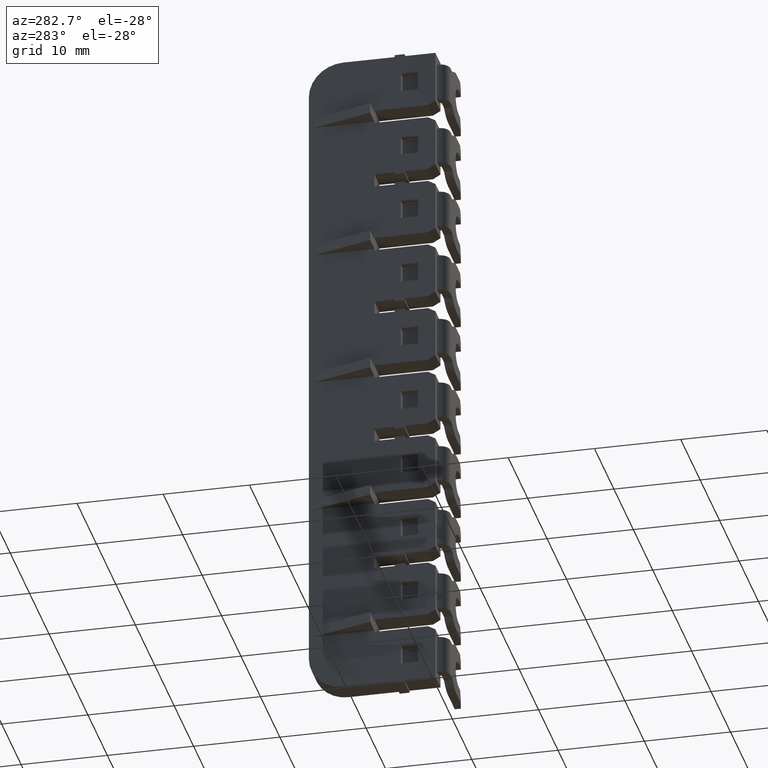
[diagram: clean part render]
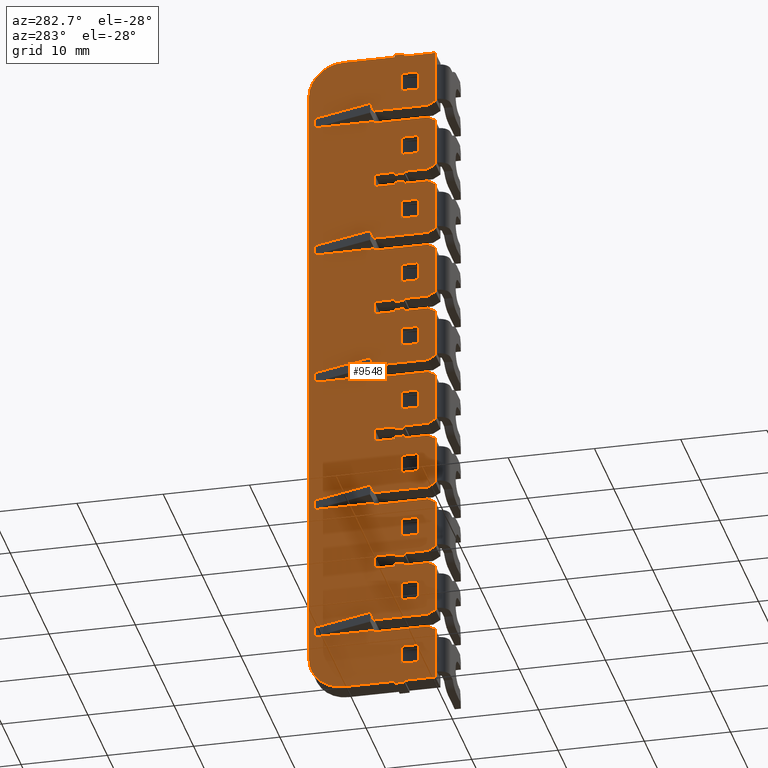
[diagram: same view with one face highlighted and labeled with its STEP entity id]
A machine part, auxiliary view. The second image highlights one B-rep face of the part: STEP entity #9548.
In plain terms, the highlighted planar face has unit normal (1, 0, -0).
Its self-contained STEP definition (entity closure, byte-faithful):
#158 = LINE ( 'NONE', #373, #8670 ) ;
#373 = CARTESIAN_POINT ( 'NONE',  ( 1552.445209356660100, 1083.834526901990100, -56.08436288956350800 ) ) ;
#375 = DIRECTION ( 'NONE',  ( 0.0000000000000000000, 0.0000000000000000000, 1.000000000000000000 ) ) ;
#383 = LINE ( 'NONE', #417, #8675 ) ;
#417 = CARTESIAN_POINT ( 'NONE',  ( 1552.445209356660100, 1084.834526901990100, -41.29999998855930000 ) ) ;
#419 = DIRECTION ( 'NONE',  ( 0.0000000000000000000, 1.000000000000000000, 2.449021377849560200E-014 ) ) ;
#448 = LINE ( 'NONE', #450, #8846 ) ;
#450 = CARTESIAN_POINT ( 'NONE',  ( 1552.445209356660100, 1094.934526901996200, -7.400000000000000400 ) ) ;
#462 = DIRECTION ( 'NONE',  ( 3.663735981263015800E-015, -1.000000000000000000, -1.096746120591567900E-016 ) ) ;
#476 = LINE ( 'NONE', #482, #8674 ) ;
#479 = CARTESIAN_POINT ( 'NONE',  ( 1552.445209356660100, 1083.834526901990100, -7.500000003813769700 ) ) ;
#481 = DIRECTION ( 'NONE',  ( 0.0000000000000000000, 0.0000000000000000000, 1.000000000000000000 ) ) ;
#482 = CARTESIAN_POINT ( 'NONE',  ( 1552.445209356660100, 1083.984526901990200, -40.24999999618660200 ) ) ;
#483 = LINE ( 'NONE', #479, #8699 ) ;
#484 = DIRECTION ( 'NONE',  ( 0.0000000000000000000, -1.000000000000000000, 6.530723674265489300E-014 ) ) ;
#487 = LINE ( 'NONE', #488, #8684 ) ;
#488 = CARTESIAN_POINT ( 'NONE',  ( 1552.445209356660100, 1083.834526901990100, -39.81306659990955400 ) ) ;
#491 = DIRECTION ( 'NONE',  ( 0.0000000000000000000, 0.0000000000000000000, 1.000000000000000000 ) ) ;
#502 = LINE ( 'NONE', #503, #8676 ) ;
#503 = CARTESIAN_POINT ( 'NONE',  ( 1552.445209356660100, 1084.834526901990100, -57.59999998474569300 ) ) ;
#504 = DIRECTION ( 'NONE',  ( 0.0000000000000000000, 1.000000000000000000, -3.265361837132745300E-014 ) ) ;
#521 = CARTESIAN_POINT ( 'NONE',  ( 1552.445209356660100, 1083.834526901990100, -41.44999998855940500 ) ) ;
#526 = LINE ( 'NONE', #521, #8717 ) ;
#532 = DIRECTION ( 'NONE',  ( 0.0000000000000000000, 0.0000000000000000000, 1.000000000000000000 ) ) ;
#537 = LINE ( 'NONE', #555, #8738 ) ;
#555 = CARTESIAN_POINT ( 'NONE',  ( 1552.445209356660100, 1084.834526901990100, -7.650000003813850000 ) ) ;
#566 = DIRECTION ( 'NONE',  ( 0.0000000000000000000, -1.000000000000000000, 1.020425574103981900E-015 ) ) ;
#579 = LINE ( 'NONE', #581, #8695 ) ;
#581 = CARTESIAN_POINT ( 'NONE',  ( 1552.445209356660100, 1084.984526901990000, -23.49161886532984800 ) ) ;
#582 = DIRECTION ( 'NONE',  ( 0.0000000000000000000, 0.0000000000000000000, -1.000000000000000000 ) ) ;
#587 = LINE ( 'NONE', #16421, #8847 ) ;
#590 = DIRECTION ( 'NONE',  ( 3.497202527569245500E-015, 1.237602582263238000E-029, 1.000000000000000000 ) ) ;
#607 = LINE ( 'NONE', #614, #5408 ) ;
#614 = CARTESIAN_POINT ( 'NONE',  ( 1552.445209356660100, 1084.259529724810100, 7.349999999999999600 ) ) ;
#861 = CARTESIAN_POINT ( 'NONE',  ( 1552.445209356660100, 1084.984526901990000, -8.699999996186518200 ) ) ;
#864 = CARTESIAN_POINT ( 'NONE',  ( 1552.445209356660100, 1083.834526901990100, -25.25000000000000000 ) ) ;
#902 = CARTESIAN_POINT ( 'NONE',  ( 1552.445209356660100, 1084.984526901990000, -7.400000000000000400 ) ) ;
#921 = CARTESIAN_POINT ( 'NONE',  ( 1552.445209356660100, 1083.834526901990100, -8.949999999999999300 ) ) ;
#924 = CARTESIAN_POINT ( 'NONE',  ( 1552.445209356664900, 1081.125555128594000, -57.85000000000000100 ) ) ;
#925 = CARTESIAN_POINT ( 'NONE',  ( 1552.445209356660100, 1087.334526901996000, -41.54999999999999700 ) ) ;
#930 = CARTESIAN_POINT ( 'NONE',  ( 1552.445209356660100, 1084.984526901990000, -8.949999999999999300 ) ) ;
#939 = CARTESIAN_POINT ( 'NONE',  ( 1552.445209356659900, 1083.834526901990100, -57.59999998474575000 ) ) ;
#941 = CARTESIAN_POINT ( 'NONE',  ( 1552.445209356660100, 1083.834526901990100, -41.54999999999999700 ) ) ;
#943 = CARTESIAN_POINT ( 'NONE',  ( 1552.445209356660100, 1084.984526901990000, -56.30000000000000400 ) ) ;
#944 = CARTESIAN_POINT ( 'NONE',  ( 1552.445209356660100, 1083.834526901990100, -8.699999996186470200 ) ) ;
#950 = CARTESIAN_POINT ( 'NONE',  ( 1552.445209356660100, 1084.984526901990000, -41.54999999999999700 ) ) ;
#955 = CARTESIAN_POINT ( 'NONE',  ( 1552.445209356660100, 1084.984526901990000, -23.69999999999999900 ) ) ;
#957 = CARTESIAN_POINT ( 'NONE',  ( 1552.445209356660100, 1084.984526901990000, -40.00000000000000000 ) ) ;
#959 = CARTESIAN_POINT ( 'NONE',  ( 1552.445209356659900, 1090.934526901996200, -72.59999999999999400 ) ) ;
#964 = CARTESIAN_POINT ( 'NONE',  ( 1552.445209356660100, 1084.984526901990000, 7.349999999999999600 ) ) ;
#981 = CARTESIAN_POINT ( 'NONE',  ( 1552.445209356660100, 1083.834526901990100, -7.650000003813844700 ) ) ;
#984 = CARTESIAN_POINT ( 'NONE',  ( 1552.445209356660100, 1084.984526901990000, -25.25000000000000000 ) ) ;
#985 = CARTESIAN_POINT ( 'NONE',  ( 1552.445209356659900, 1083.834526901990100, -24.99999999237287800 ) ) ;
#986 = CARTESIAN_POINT ( 'NONE',  ( 1552.445209356664900, 1081.125555128594000, -15.54999999999999900 ) ) ;
#987 = CARTESIAN_POINT ( 'NONE',  ( 1552.445209356660100, 1087.334526901996000, -48.14999999999999900 ) ) ;
#988 = CARTESIAN_POINT ( 'NONE',  ( 1552.445209356660100, 1084.984526901990000, -7.650000003813845600 ) ) ;
#990 = CARTESIAN_POINT ( 'NONE',  ( 1552.445209356660100, 1083.834526901990100, -56.30000000000000400 ) ) ;
#991 = CARTESIAN_POINT ( 'NONE',  ( 1552.445209356664900, 1081.125555128594000, -48.14999999999999900 ) ) ;
#992 = CARTESIAN_POINT ( 'NONE',  ( 1552.445209356660100, 1083.834526901990100, -23.69999999999999900 ) ) ;
#993 = CARTESIAN_POINT ( 'NONE',  ( 1552.445209356660100, 1094.334526901996000, -0.6249999999999992200 ) ) ;
#994 = CARTESIAN_POINT ( 'NONE',  ( 1552.445209356664900, 1081.125555128594000, -40.00000000000000000 ) ) ;
#995 = CARTESIAN_POINT ( 'NONE',  ( 1552.445209356660100, 1087.334526901996000, -31.85000000000000500 ) ) ;
#996 = CARTESIAN_POINT ( 'NONE',  ( 1552.445209356660100, 1080.259529724810100, 7.349999999999999600 ) ) ;
#997 = CARTESIAN_POINT ( 'NONE',  ( 1552.445209356659900, 1084.984526901990000, -41.29999998855927900 ) ) ;
#1000 = CARTESIAN_POINT ( 'NONE',  ( 1552.445209356660100, 1087.334526901996000, -49.70000000000000300 ) ) ;
#1002 = CARTESIAN_POINT ( 'NONE',  ( 1552.445209356659900, 1083.834526901990100, -56.54999999237309500 ) ) ;
#1005 = CARTESIAN_POINT ( 'NONE',  ( 1552.445209356664900, 1080.259529724810100, -6.899999999999999500 ) ) ;
#1010 = CARTESIAN_POINT ( 'NONE',  ( 1552.445209356660100, 1087.334526901996000, -0.6250000000000005600 ) ) ;
#1011 = CARTESIAN_POINT ( 'NONE',  ( 1552.445209356660100, 1084.984526901990000, -23.95000000000029100 ) ) ;
#1013 = CARTESIAN_POINT ( 'NONE',  ( 1552.445209356660100, 1083.834526901990100, -40.00000000000000000 ) ) ;
#1014 = CARTESIAN_POINT ( 'NONE',  ( 1552.445209356660100, 1087.334526901996000, -25.25000000000000000 ) ) ;
#1016 = CARTESIAN_POINT ( 'NONE',  ( 1552.445209356659900, 1094.334526901995600, -49.52499999999999900 ) ) ;
#1017 = CARTESIAN_POINT ( 'NONE',  ( 1552.445209356664900, 1080.259529724810100, -55.80000000000000400 ) ) ;
#1018 = CARTESIAN_POINT ( 'NONE',  ( 1552.445209356659900, 1087.334526901996000, -33.22499999999999400 ) ) ;
#1019 = CARTESIAN_POINT ( 'NONE',  ( 1552.445209356660100, 1087.334526901996000, -8.949999999999999300 ) ) ;
#1020 = CARTESIAN_POINT ( 'NONE',  ( 1552.445209356659900, 1084.984526901990000, -57.59999998474579300 ) ) ;
#1022 = CARTESIAN_POINT ( 'NONE',  ( 1552.445209356659900, 1084.984526901990000, -24.99999999237297000 ) ) ;
#1024 = CARTESIAN_POINT ( 'NONE',  ( 1552.445209356659900, 1084.984526901990000, -40.24999999618665200 ) ) ;
#1028 = CARTESIAN_POINT ( 'NONE',  ( 1552.445209356659900, 1084.984526901990000, -56.54999999237306000 ) ) ;
#1030 = CARTESIAN_POINT ( 'NONE',  ( 1552.445209356660100, 1083.834526901990100, -57.85000000000000100 ) ) ;
#1031 = CARTESIAN_POINT ( 'NONE',  ( 1552.445209356660100, 1083.834526901990100, -7.400000000000000400 ) ) ;
#1036 = CARTESIAN_POINT ( 'NONE',  ( 1552.445209356659900, 1083.834526901990100, -40.24999999618658100 ) ) ;
#1037 = CARTESIAN_POINT ( 'NONE',  ( 1552.445209356659900, 1083.834526901990100, -41.29999998855930700 ) ) ;
#1038 = CARTESIAN_POINT ( 'NONE',  ( 1552.445209356660100, 1084.984526901990000, -57.85000000000000100 ) ) ;
#1040 = CARTESIAN_POINT ( 'NONE',  ( 1552.445209356660100, 1083.834526901990100, -23.95000000000024100 ) ) ;
#1042 = CARTESIAN_POINT ( 'NONE',  ( 1552.445209356660100, 1087.334526901996000, -40.00000000000000000 ) ) ;
#1043 = CARTESIAN_POINT ( 'NONE',  ( 1552.445209356664900, 1081.125555128594000, -25.25000000000000000 ) ) ;
#1045 = CARTESIAN_POINT ( 'NONE',  ( 1552.445209356659900, 1094.334526901995800, -32.02499999999999900 ) ) ;
#1047 = CARTESIAN_POINT ( 'NONE',  ( 1552.445209356660100, 1087.334526901996000, -32.02499999999999900 ) ) ;
#1048 = CARTESIAN_POINT ( 'NONE',  ( 1552.445209356664900, 1081.125555128594000, -56.30000000000000400 ) ) ;
#1051 = CARTESIAN_POINT ( 'NONE',  ( 1552.445209356659900, 1094.334526901995600, -48.32500000000000300 ) ) ;
#1052 = CARTESIAN_POINT ( 'NONE',  ( 1552.445209356660100, 1084.984526901990000, 7.599999999999917000 ) ) ;
#1053 = CARTESIAN_POINT ( 'NONE',  ( 1552.445209356660100, 1082.259529724810100, -43.75000000000000000 ) ) ;
#1054 = CARTESIAN_POINT ( 'NONE',  ( 1552.445209356660100, 1087.334526901996000, -7.400000000000000400 ) ) ;
#1055 = CARTESIAN_POINT ( 'NONE',  ( 1552.445209356659900, 1084.984526901990000, -72.59999999999999400 ) ) ;
#1056 = CARTESIAN_POINT ( 'NONE',  ( 1552.445209356660100, 1087.334526901996000, -15.72500000000000000 ) ) ;
#1059 = CARTESIAN_POINT ( 'NONE',  ( 1552.445209356659900, 1087.334526901996000, -49.52499999999999900 ) ) ;
#1060 = CARTESIAN_POINT ( 'NONE',  ( 1552.445209356664900, 1081.125555128594000, -41.54999999999999700 ) ) ;
#1062 = CARTESIAN_POINT ( 'NONE',  ( 1552.445209356660100, 1083.834526901990100, 7.349999999999999600 ) ) ;
#1063 = CARTESIAN_POINT ( 'NONE',  ( 1552.445209356660100, 1087.334526901996000, -64.44999999999998900 ) ) ;
#1064 = CARTESIAN_POINT ( 'NONE',  ( 1552.445209356660100, 1084.259529724810100, -37.79999999999999700 ) ) ;
#1065 = CARTESIAN_POINT ( 'NONE',  ( 1552.445209356664900, 1080.259529724810100, -23.19999999999999900 ) ) ;
#1066 = CARTESIAN_POINT ( 'NONE',  ( 1552.445209356660100, 1087.334526901996000, -17.10000000000000100 ) ) ;
#1067 = CARTESIAN_POINT ( 'NONE',  ( 1552.445209356659900, 1080.259529724810100, -72.59999999999999400 ) ) ;
#1068 = CARTESIAN_POINT ( 'NONE',  ( 1552.445209356664900, 1080.259529724810100, -63.95000000000001000 ) ) ;
#1069 = CARTESIAN_POINT ( 'NONE',  ( 1552.445209356664900, 1080.259529724810100, -17.60000000000000100 ) ) ;
#1070 = CARTESIAN_POINT ( 'NONE',  ( 1552.445209356664900, 1080.259529724810100, -33.89999999999999900 ) ) ;
#1071 = CARTESIAN_POINT ( 'NONE',  ( 1552.445209356664900, 1081.125555128594000, -17.10000000000000100 ) ) ;
#1072 = CARTESIAN_POINT ( 'NONE',  ( 1552.445209356664900, 1080.259529724810100, -47.64999999999999900 ) ) ;
#1073 = CARTESIAN_POINT ( 'NONE',  ( 1552.445209356660100, 1084.259529724810100, -21.50000000000000000 ) ) ;
#1074 = CARTESIAN_POINT ( 'NONE',  ( 1552.445209356660100, 1082.259529724810100, -21.50000000000000000 ) ) ;
#1075 = CARTESIAN_POINT ( 'NONE',  ( 1552.445209356660100, 1094.334526901996000, 0.5750000000000007300 ) ) ;
#1076 = CARTESIAN_POINT ( 'NONE',  ( 1552.445209356660100, 1087.334526901996000, -15.54999999999999900 ) ) ;
#1077 = CARTESIAN_POINT ( 'NONE',  ( 1552.445209356664900, 1081.125555128594000, -33.39999999999999900 ) ) ;
#1078 = CARTESIAN_POINT ( 'NONE',  ( 1552.445209356660100, 1094.334526901995800, -16.92500000000000100 ) ) ;
#1079 = CARTESIAN_POINT ( 'NONE',  ( 1552.445209356660100, 1090.934526901996200, 7.349999999999999600 ) ) ;
#1081 = CARTESIAN_POINT ( 'NONE',  ( 1552.445209356660100, 1094.934526901996200, 3.350000000000009400 ) ) ;
#1083 = CARTESIAN_POINT ( 'NONE',  ( 1552.445209356660100, 1087.334526901996000, -23.69999999999999900 ) ) ;
#1085 = CARTESIAN_POINT ( 'NONE',  ( 1552.445209356664900, 1081.125555128594000, -7.400000000000000400 ) ) ;
#1086 = CARTESIAN_POINT ( 'NONE',  ( 1552.445209356664900, 1080.259529724810100, -25.75000000000000000 ) ) ;
#1087 = CARTESIAN_POINT ( 'NONE',  ( 1552.445209356660100, 1082.259529724810100, -45.94999999999999600 ) ) ;
#1088 = CARTESIAN_POINT ( 'NONE',  ( 1552.445209356664900, 1080.259529724810100, -1.300000000000000000 ) ) ;
#1089 = CARTESIAN_POINT ( 'NONE',  ( 1552.445209356664900, 1080.259529724810100, -39.50000000000000000 ) ) ;
#1090 = CARTESIAN_POINT ( 'NONE',  ( 1552.445209356660100, 1084.259529724810100, -29.64999999999999900 ) ) ;
#1091 = CARTESIAN_POINT ( 'NONE',  ( 1552.445209356660100, 1084.259529724810100, -60.04999999999999700 ) ) ;
#1092 = CARTESIAN_POINT ( 'NONE',  ( 1552.445209356664900, 1081.125555128594000, -8.949999999999999300 ) ) ;
#1093 = CARTESIAN_POINT ( 'NONE',  ( 1552.445209356660100, 1084.259529724810100, -13.35000000000000100 ) ) ;
#1094 = CARTESIAN_POINT ( 'NONE',  ( 1552.445209356664900, 1080.259529724810100, -31.35000000000000100 ) ) ;
#1095 = CARTESIAN_POINT ( 'NONE',  ( 1552.445209356660100, 1082.259529724810100, -5.200000000000000200 ) ) ;
#1096 = CARTESIAN_POINT ( 'NONE',  ( 1552.445209356660100, 1084.259529724810100, -68.20000000000000300 ) ) ;
#1097 = CARTESIAN_POINT ( 'NONE',  ( 1552.445209356664900, 1081.125555128594000, -23.69999999999999900 ) ) ;
#1098 = CARTESIAN_POINT ( 'NONE',  ( 1552.445209356660100, 1083.834526901990100, 7.600000000000029000 ) ) ;
#1099 = CARTESIAN_POINT ( 'NONE',  ( 1552.445209356660100, 1087.334526901996000, -56.30000000000000400 ) ) ;
#1100 = CARTESIAN_POINT ( 'NONE',  ( 1552.445209356664900, 1081.125555128594000, -31.85000000000000500 ) ) ;
#1101 = CARTESIAN_POINT ( 'NONE',  ( 1552.445209356660100, 1094.334526901995800, -15.72500000000000000 ) ) ;
#1102 = CARTESIAN_POINT ( 'NONE',  ( 1552.445209356660100, 1084.259529724810100, -45.94999999999999600 ) ) ;
#1103 = CARTESIAN_POINT ( 'NONE',  ( 1552.445209356660100, 1084.259529724810100, -5.200000000000000200 ) ) ;
#1104 = CARTESIAN_POINT ( 'NONE',  ( 1552.445209356664900, 1080.259529724810100, -42.04999999999999700 ) ) ;
#1105 = CARTESIAN_POINT ( 'NONE',  ( 1552.445209356664900, 1080.259529724810100, -50.20000000000000300 ) ) ;
#1106 = CARTESIAN_POINT ( 'NONE',  ( 1552.445209356660100, 1087.334526901996000, 0.7500000000000000000 ) ) ;
#1107 = CARTESIAN_POINT ( 'NONE',  ( 1552.445209356660100, 1084.259529724810100, -3.000000000000000000 ) ) ;
#1108 = CARTESIAN_POINT ( 'NONE',  ( 1552.445209356660100, 1087.334526901996000, -66.00000000000000000 ) ) ;
#1109 = CARTESIAN_POINT ( 'NONE',  ( 1552.445209356664900, 1080.259529724810100, -66.50000000000000000 ) ) ;
#1110 = CARTESIAN_POINT ( 'NONE',  ( 1552.445209356659900, 1083.834526901990100, -72.59999999999999400 ) ) ;
#1111 = CARTESIAN_POINT ( 'NONE',  ( 1552.445209356660100, 1087.334526901996000, -16.92500000000000100 ) ) ;
#1112 = CARTESIAN_POINT ( 'NONE',  ( 1552.445209356660100, 1084.259529724810100, 5.150000000000000400 ) ) ;
#1114 = CARTESIAN_POINT ( 'NONE',  ( 1552.445209356660100, 1082.259529724810100, -29.64999999999999900 ) ) ;
#1115 = CARTESIAN_POINT ( 'NONE',  ( 1552.445209356664900, 1081.125555128594000, -66.00000000000000000 ) ) ;
#1116 = CARTESIAN_POINT ( 'NONE',  ( 1552.445209356659900, 1094.334526901995800, -33.22499999999999400 ) ) ;
#1118 = CARTESIAN_POINT ( 'NONE',  ( 1552.445209356660100, 1084.259529724810100, -27.44999999999999900 ) ) ;
#1119 = CARTESIAN_POINT ( 'NONE',  ( 1552.445209356660100, 1082.259529724810100, -68.20000000000000300 ) ) ;
#1120 = CARTESIAN_POINT ( 'NONE',  ( 1552.445209356660100, 1082.259529724810100, -35.60000000000000100 ) ) ;
#1122 = CARTESIAN_POINT ( 'NONE',  ( 1552.445209356659900, 1087.334526901996000, -64.62500000000000000 ) ) ;
#1123 = CARTESIAN_POINT ( 'NONE',  ( 1552.445209356659900, 1094.334526901995300, -64.62500000000000000 ) ) ;
#1126 = CARTESIAN_POINT ( 'NONE',  ( 1552.445209356660100, 1082.259529724810100, -19.30000000000000100 ) ) ;
#1127 = CARTESIAN_POINT ( 'NONE',  ( 1552.445209356664900, 1081.125555128594000, -0.8000000000000000400 ) ) ;
#1128 = CARTESIAN_POINT ( 'NONE',  ( 1552.445209356664900, 1080.259529724810100, -15.04999999999999900 ) ) ;
#1129 = CARTESIAN_POINT ( 'NONE',  ( 1552.445209356660100, 1082.259529724810100, -13.35000000000000100 ) ) ;
#1131 = CARTESIAN_POINT ( 'NONE',  ( 1552.445209356664900, 1080.259529724810100, -9.449999999999999300 ) ) ;
#1134 = CARTESIAN_POINT ( 'NONE',  ( 1552.445209356659900, 1087.334526901996000, -48.32500000000000300 ) ) ;
#1136 = CARTESIAN_POINT ( 'NONE',  ( 1552.445209356660100, 1087.334526901996000, 0.5749999999999999600 ) ) ;
#1139 = CARTESIAN_POINT ( 'NONE',  ( 1552.445209356664900, 1081.125555128594000, -49.70000000000000300 ) ) ;
#1141 = CARTESIAN_POINT ( 'NONE',  ( 1552.445209356660100, 1087.334526901996000, -33.39999999999999900 ) ) ;
#1144 = CARTESIAN_POINT ( 'NONE',  ( 1552.445209356660100, 1084.259529724810100, -19.30000000000000100 ) ) ;
#1145 = CARTESIAN_POINT ( 'NONE',  ( 1552.445209356660100, 1082.259529724810100, 5.150000000000000400 ) ) ;
#1146 = CARTESIAN_POINT ( 'NONE',  ( 1552.445209356660100, 1082.259529724810100, -27.44999999999999900 ) ) ;
#1147 = CARTESIAN_POINT ( 'NONE',  ( 1552.445209356659900, 1094.934526901996200, -68.59999999999998000 ) ) ;
#1148 = CARTESIAN_POINT ( 'NONE',  ( 1552.445209356660100, 1082.259529724810100, 2.949999999999999700 ) ) ;
#1149 = CARTESIAN_POINT ( 'NONE',  ( 1552.445209356660100, 1082.259529724810100, -60.04999999999999700 ) ) ;
#1150 = CARTESIAN_POINT ( 'NONE',  ( 1552.445209356664900, 1081.125555128594000, 0.7500000000000000000 ) ) ;
#1151 = CARTESIAN_POINT ( 'NONE',  ( 1552.445209356660100, 1084.259529724810100, -43.75000000000000000 ) ) ;
#1152 = CARTESIAN_POINT ( 'NONE',  ( 1552.445209356664900, 1080.259529724810100, -58.35000000000000100 ) ) ;
#1153 = CARTESIAN_POINT ( 'NONE',  ( 1552.445209356664900, 1081.125555128594000, -64.44999999999998900 ) ) ;
#1154 = CARTESIAN_POINT ( 'NONE',  ( 1552.445209356660100, 1084.259529724810100, 2.949999999999999700 ) ) ;
#1155 = CARTESIAN_POINT ( 'NONE',  ( 1552.445209356660100, 1087.334526901996000, -0.8000000000000000400 ) ) ;
#1156 = CARTESIAN_POINT ( 'NONE',  ( 1552.445209356660100, 1082.259529724810100, -62.25000000000000000 ) ) ;
#1158 = CARTESIAN_POINT ( 'NONE',  ( 1552.445209356659900, 1094.334526901995300, -65.82499999999998900 ) ) ;
#1159 = CARTESIAN_POINT ( 'NONE',  ( 1552.445209356664900, 1080.259529724810100, 1.250000000000000000 ) ) ;
#1160 = CARTESIAN_POINT ( 'NONE',  ( 1552.445209356660100, 1084.259529724810100, -11.15000000000000000 ) ) ;
#1161 = CARTESIAN_POINT ( 'NONE',  ( 1552.445209356659900, 1083.834526901990100, -72.84999998855950300 ) ) ;
#1162 = CARTESIAN_POINT ( 'NONE',  ( 1552.445209356659900, 1087.334526901996000, -65.82499999999998900 ) ) ;
#1163 = CARTESIAN_POINT ( 'NONE',  ( 1552.445209356660100, 1082.259529724810100, -11.15000000000000000 ) ) ;
#1164 = CARTESIAN_POINT ( 'NONE',  ( 1552.445209356660100, 1082.259529724810100, -3.000000000000000000 ) ) ;
#1166 = CARTESIAN_POINT ( 'NONE',  ( 1552.445209356660100, 1087.334526901996000, -57.85000000000000100 ) ) ;
#1167 = CARTESIAN_POINT ( 'NONE',  ( 1552.445209356660100, 1084.259529724810100, -62.25000000000000000 ) ) ;
#1168 = CARTESIAN_POINT ( 'NONE',  ( 1552.445209356659900, 1084.984526901990000, -72.84999998855940400 ) ) ;
#1169 = CARTESIAN_POINT ( 'NONE',  ( 1552.445209356660100, 1084.259529724810100, -35.60000000000000100 ) ) ;
#1170 = CARTESIAN_POINT ( 'NONE',  ( 1552.445209356660100, 1082.259529724810100, -37.79999999999999700 ) ) ;
#1534 = LINE ( 'NONE', #1585, #5389 ) ;
#1540 = CARTESIAN_POINT ( 'NONE',  ( 1552.445209356660100, 1082.259529724810100, -72.59999999999999400 ) ) ;
#1556 = LINE ( 'NONE', #1562, #5418 ) ;
#1562 = CARTESIAN_POINT ( 'NONE',  ( 1552.445209356660100, 1094.934526901996200, -35.60000000000000100 ) ) ;
#1572 = DIRECTION ( 'NONE',  ( -3.538835890992685300E-015, 1.000000000000000000, 1.150239550150604000E-029 ) ) ;
#1575 = LINE ( 'NONE', #1540, #5391 ) ;
#1576 = DIRECTION ( 'NONE',  ( 3.003463711734375200E-015, -1.237602582263238000E-029, 1.000000000000000000 ) ) ;
#1585 = CARTESIAN_POINT ( 'NONE',  ( 1552.445209356660100, 1082.259529724810100, -72.59999999999999400 ) ) ;
#1588 = DIRECTION ( 'NONE',  ( 3.003463711734375200E-015, -1.237602582263238000E-029, 1.000000000000000000 ) ) ;
#2076 = VERTEX_POINT ( 'NONE', #11964 ) ;
#2085 = VERTEX_POINT ( 'NONE', #11966 ) ;
#2109 = VERTEX_POINT ( 'NONE', #11959 ) ;
#2117 = VERTEX_POINT ( 'NONE', #11944 ) ;
#2120 = VERTEX_POINT ( 'NONE', #11936 ) ;
#2136 = VERTEX_POINT ( 'NONE', #11920 ) ;
#2693 = VERTEX_POINT ( 'NONE', #861 ) ;
#2694 = VERTEX_POINT ( 'NONE', #864 ) ;
#2702 = VERTEX_POINT ( 'NONE', #902 ) ;
#2711 = VERTEX_POINT ( 'NONE', #921 ) ;
#2714 = VERTEX_POINT ( 'NONE', #944 ) ;
#2718 = VERTEX_POINT ( 'NONE', #984 ) ;
#2721 = VERTEX_POINT ( 'NONE', #930 ) ;
#2731 = VERTEX_POINT ( 'NONE', #981 ) ;
#2733 = VERTEX_POINT ( 'NONE', #950 ) ;
#2753 = VERTEX_POINT ( 'NONE', #939 ) ;
#2754 = VERTEX_POINT ( 'NONE', #924 ) ;
#2756 = VERTEX_POINT ( 'NONE', #925 ) ;
#2757 = VERTEX_POINT ( 'NONE', #964 ) ;
#2758 = VERTEX_POINT ( 'NONE', #959 ) ;
#2759 = VERTEX_POINT ( 'NONE', #957 ) ;
#2770 = VERTEX_POINT ( 'NONE', #943 ) ;
#2771 = VERTEX_POINT ( 'NONE', #941 ) ;
#2773 = VERTEX_POINT ( 'NONE', #955 ) ;
#2776 = VERTEX_POINT ( 'NONE', #1040 ) ;
#2777 = VERTEX_POINT ( 'NONE', #985 ) ;
#2778 = VERTEX_POINT ( 'NONE', #997 ) ;
#2782 = VERTEX_POINT ( 'NONE', #1036 ) ;
#2785 = VERTEX_POINT ( 'NONE', #1037 ) ;
#2789 = VERTEX_POINT ( 'NONE', #1022 ) ;
#2790 = VERTEX_POINT ( 'NONE', #1030 ) ;
#2791 = VERTEX_POINT ( 'NONE', #1002 ) ;
#2794 = VERTEX_POINT ( 'NONE', #1011 ) ;
#2797 = VERTEX_POINT ( 'NONE', #988 ) ;
#2798 = VERTEX_POINT ( 'NONE', #1024 ) ;
#2800 = VERTEX_POINT ( 'NONE', #1028 ) ;
#2802 = VERTEX_POINT ( 'NONE', #1020 ) ;
#2804 = VERTEX_POINT ( 'NONE', #1038 ) ;
#2805 = VERTEX_POINT ( 'NONE', #992 ) ;
#2809 = VERTEX_POINT ( 'NONE', #1031 ) ;
#2812 = VERTEX_POINT ( 'NONE', #990 ) ;
#2815 = VERTEX_POINT ( 'NONE', #1010 ) ;
#2816 = VERTEX_POINT ( 'NONE', #1042 ) ;
#2817 = VERTEX_POINT ( 'NONE', #1043 ) ;
#2818 = VERTEX_POINT ( 'NONE', #1045 ) ;
#2819 = VERTEX_POINT ( 'NONE', #1047 ) ;
#2820 = VERTEX_POINT ( 'NONE', #1005 ) ;
#2822 = VERTEX_POINT ( 'NONE', #1048 ) ;
#2823 = VERTEX_POINT ( 'NONE', #986 ) ;
#2824 = VERTEX_POINT ( 'NONE', #1013 ) ;
#2825 = VERTEX_POINT ( 'NONE', #987 ) ;
#2826 = VERTEX_POINT ( 'NONE', #991 ) ;
#2827 = VERTEX_POINT ( 'NONE', #993 ) ;
#2828 = VERTEX_POINT ( 'NONE', #994 ) ;
#2829 = VERTEX_POINT ( 'NONE', #995 ) ;
#2830 = VERTEX_POINT ( 'NONE', #996 ) ;
#2831 = VERTEX_POINT ( 'NONE', #1000 ) ;
#2832 = VERTEX_POINT ( 'NONE', #1014 ) ;
#2834 = VERTEX_POINT ( 'NONE', #1016 ) ;
#2835 = VERTEX_POINT ( 'NONE', #1017 ) ;
#2836 = VERTEX_POINT ( 'NONE', #1018 ) ;
#2837 = VERTEX_POINT ( 'NONE', #1019 ) ;
#2838 = VERTEX_POINT ( 'NONE', #1110 ) ;
#2839 = VERTEX_POINT ( 'NONE', #1085 ) ;
#2840 = VERTEX_POINT ( 'NONE', #1069 ) ;
#2841 = VERTEX_POINT ( 'NONE', #1075 ) ;
#2843 = VERTEX_POINT ( 'NONE', #1081 ) ;
#2844 = VERTEX_POINT ( 'NONE', #1100 ) ;
#2845 = VERTEX_POINT ( 'NONE', #1076 ) ;
#2846 = VERTEX_POINT ( 'NONE', #1055 ) ;
#2847 = VERTEX_POINT ( 'NONE', #1097 ) ;
#2848 = VERTEX_POINT ( 'NONE', #1088 ) ;
#2849 = VERTEX_POINT ( 'NONE', #1056 ) ;
#2850 = VERTEX_POINT ( 'NONE', #1071 ) ;
#2851 = VERTEX_POINT ( 'NONE', #1101 ) ;
#2852 = VERTEX_POINT ( 'NONE', #1104 ) ;
#2853 = VERTEX_POINT ( 'NONE', #1092 ) ;
#2854 = VERTEX_POINT ( 'NONE', #1099 ) ;
#2855 = VERTEX_POINT ( 'NONE', #1079 ) ;
#2856 = VERTEX_POINT ( 'NONE', #1077 ) ;
#2858 = VERTEX_POINT ( 'NONE', #1066 ) ;
#2859 = VERTEX_POINT ( 'NONE', #1098 ) ;
#2860 = VERTEX_POINT ( 'NONE', #1089 ) ;
#2861 = VERTEX_POINT ( 'NONE', #1078 ) ;
#2862 = VERTEX_POINT ( 'NONE', #1105 ) ;
#2863 = VERTEX_POINT ( 'NONE', #1086 ) ;
#2867 = VERTEX_POINT ( 'NONE', #1070 ) ;
#2868 = VERTEX_POINT ( 'NONE', #1072 ) ;
#2870 = VERTEX_POINT ( 'NONE', #1065 ) ;
#2872 = VERTEX_POINT ( 'NONE', #1083 ) ;
#2873 = VERTEX_POINT ( 'NONE', #1051 ) ;
#2875 = VERTEX_POINT ( 'NONE', #1067 ) ;
#2876 = VERTEX_POINT ( 'NONE', #1059 ) ;
#2877 = VERTEX_POINT ( 'NONE', #1054 ) ;
#2878 = VERTEX_POINT ( 'NONE', #1102 ) ;
#2879 = VERTEX_POINT ( 'NONE', #1108 ) ;
#2880 = VERTEX_POINT ( 'NONE', #1087 ) ;
#2881 = VERTEX_POINT ( 'NONE', #1090 ) ;
#2882 = VERTEX_POINT ( 'NONE', #1103 ) ;
#2883 = VERTEX_POINT ( 'NONE', #1091 ) ;
#2884 = VERTEX_POINT ( 'NONE', #1093 ) ;
#2885 = VERTEX_POINT ( 'NONE', #1106 ) ;
#2886 = VERTEX_POINT ( 'NONE', #1073 ) ;
#2887 = VERTEX_POINT ( 'NONE', #1094 ) ;
#2888 = VERTEX_POINT ( 'NONE', #1095 ) ;
#2889 = VERTEX_POINT ( 'NONE', #1063 ) ;
#2890 = VERTEX_POINT ( 'NONE', #1107 ) ;
#2891 = VERTEX_POINT ( 'NONE', #1074 ) ;
#2892 = VERTEX_POINT ( 'NONE', #1064 ) ;
#2893 = VERTEX_POINT ( 'NONE', #1096 ) ;
#2894 = VERTEX_POINT ( 'NONE', #1109 ) ;
#2895 = VERTEX_POINT ( 'NONE', #1060 ) ;
#2896 = VERTEX_POINT ( 'NONE', #1111 ) ;
#2897 = VERTEX_POINT ( 'NONE', #1052 ) ;
#2898 = VERTEX_POINT ( 'NONE', #1062 ) ;
#2899 = VERTEX_POINT ( 'NONE', #1053 ) ;
#2900 = VERTEX_POINT ( 'NONE', #1068 ) ;
#2901 = VERTEX_POINT ( 'NONE', #1122 ) ;
#2902 = VERTEX_POINT ( 'NONE', #1153 ) ;
#2903 = VERTEX_POINT ( 'NONE', #1129 ) ;
#2904 = VERTEX_POINT ( 'NONE', #1168 ) ;
#2905 = VERTEX_POINT ( 'NONE', #1160 ) ;
#2906 = VERTEX_POINT ( 'NONE', #1163 ) ;
#2907 = VERTEX_POINT ( 'NONE', #1159 ) ;
#2908 = VERTEX_POINT ( 'NONE', #1161 ) ;
#2909 = VERTEX_POINT ( 'NONE', #1151 ) ;
#2910 = VERTEX_POINT ( 'NONE', #1134 ) ;
#2911 = VERTEX_POINT ( 'NONE', #1126 ) ;
#2912 = VERTEX_POINT ( 'NONE', #1146 ) ;
#2913 = VERTEX_POINT ( 'NONE', #1154 ) ;
#2914 = VERTEX_POINT ( 'NONE', #1127 ) ;
#2915 = VERTEX_POINT ( 'NONE', #1158 ) ;
#2916 = VERTEX_POINT ( 'NONE', #1149 ) ;
#2917 = VERTEX_POINT ( 'NONE', #1136 ) ;
#2918 = VERTEX_POINT ( 'NONE', #1131 ) ;
#2919 = VERTEX_POINT ( 'NONE', #1128 ) ;
#2920 = VERTEX_POINT ( 'NONE', #1114 ) ;
#2921 = VERTEX_POINT ( 'NONE', #1148 ) ;
#2922 = VERTEX_POINT ( 'NONE', #1115 ) ;
#2923 = VERTEX_POINT ( 'NONE', #1152 ) ;
#2924 = VERTEX_POINT ( 'NONE', #1147 ) ;
#2925 = VERTEX_POINT ( 'NONE', #1144 ) ;
#2926 = VERTEX_POINT ( 'NONE', #1150 ) ;
#2927 = VERTEX_POINT ( 'NONE', #1162 ) ;
#2928 = VERTEX_POINT ( 'NONE', #1118 ) ;
#2929 = VERTEX_POINT ( 'NONE', #1123 ) ;
#2930 = VERTEX_POINT ( 'NONE', #1166 ) ;
#2931 = VERTEX_POINT ( 'NONE', #1145 ) ;
#2932 = VERTEX_POINT ( 'NONE', #1119 ) ;
#2933 = VERTEX_POINT ( 'NONE', #1141 ) ;
#2934 = VERTEX_POINT ( 'NONE', #1120 ) ;
#2935 = VERTEX_POINT ( 'NONE', #1116 ) ;
#2936 = VERTEX_POINT ( 'NONE', #1139 ) ;
#2937 = VERTEX_POINT ( 'NONE', #1155 ) ;
#2938 = VERTEX_POINT ( 'NONE', #1112 ) ;
#2939 = VERTEX_POINT ( 'NONE', #1169 ) ;
#2940 = VERTEX_POINT ( 'NONE', #1164 ) ;
#2953 = VERTEX_POINT ( 'NONE', #1167 ) ;
#2963 = VERTEX_POINT ( 'NONE', #1170 ) ;
#2965 = VERTEX_POINT ( 'NONE', #1156 ) ;
#3267 = AXIS2_PLACEMENT_3D ( 'NONE', #11162, #11163, #11167 ) ;
#3919 = CARTESIAN_POINT ( 'NONE',  ( 1552.445209356664900, 1080.259529724810100, -63.95000000000001000 ) ) ;
#3920 = DIRECTION ( 'NONE',  ( -3.497202527569245500E-015, -1.237602582263238000E-029, -1.000000000000000000 ) ) ;
#3921 = CARTESIAN_POINT ( 'NONE',  ( 1552.445209356660100, 1094.934526901996200, -31.85000000000000500 ) ) ;
#3922 = DIRECTION ( 'NONE',  ( -4.798054992358794100E-015, 0.8660254037844383700, -0.5000000000000003300 ) ) ;
#3923 = LINE ( 'NONE', #3932, #8860 ) ;
#3924 = LINE ( 'NONE', #3933, #8885 ) ;
#3925 = LINE ( 'NONE', #3930, #8837 ) ;
#3926 = DIRECTION ( 'NONE',  ( 1.547721872706970800E-015, -0.8660254037844383700, -0.5000000000000003300 ) ) ;
#3927 = LINE ( 'NONE', #3942, #8875 ) ;
#3928 = LINE ( 'NONE', #3919, #8862 ) ;
#3929 = DIRECTION ( 'NONE',  ( -3.663735981263015800E-015, 1.000000000000000000, -4.682231220498579100E-017 ) ) ;
#3930 = CARTESIAN_POINT ( 'NONE',  ( 1552.445209356660100, 1082.259529724810100, 7.349999999999999600 ) ) ;
#3931 = LINE ( 'NONE', #3921, #8863 ) ;
#3932 = CARTESIAN_POINT ( 'NONE',  ( 1552.445209356664900, 1080.259529724810100, -9.449999999999999300 ) ) ;
#3933 = CARTESIAN_POINT ( 'NONE',  ( 1552.445209356664900, 1080.259529724810100, -1.300000000000000000 ) ) ;
#3934 = CARTESIAN_POINT ( 'NONE',  ( 1552.445209356660100, 1094.934526901996200, -13.35000000000000100 ) ) ;
#3935 = LINE ( 'NONE', #3940, #8877 ) ;
#3936 = CARTESIAN_POINT ( 'NONE',  ( 1552.445209356660100, 1094.934526901996200, -68.20000000000000300 ) ) ;
#3937 = LINE ( 'NONE', #3939, #8873 ) ;
#3938 = DIRECTION ( 'NONE',  ( -3.538835890992685300E-015, 1.000000000000000000, 1.150239550150604000E-029 ) ) ;
#3939 = CARTESIAN_POINT ( 'NONE',  ( 1552.445209356660100, 1094.934526901996200, -60.04999999999999700 ) ) ;
#3940 = CARTESIAN_POINT ( 'NONE',  ( 1552.445209356660100, 1084.259529724810100, -72.59999999999999400 ) ) ;
#3941 = LINE ( 'NONE', #3943, #8874 ) ;
#3942 = CARTESIAN_POINT ( 'NONE',  ( 1552.445209356660100, 1084.259529724810100, -56.30000000000000400 ) ) ;
#3943 = CARTESIAN_POINT ( 'NONE',  ( 1552.445209356660100, 1094.934526901996200, -62.25000000000000000 ) ) ;
#3945 = DIRECTION ( 'NONE',  ( -1.000000000000000000, -3.538835890992685300E-015, 3.497202527569245500E-015 ) ) ;
#3946 = DIRECTION ( 'NONE',  ( -1.547721872706975700E-015, 0.8660254037844383700, 0.5000000000000003300 ) ) ;
#3947 = DIRECTION ( 'NONE',  ( 3.538835890992685300E-015, -1.000000000000000000, -1.150239550150604000E-029 ) ) ;
#3953 = LINE ( 'NONE', #3936, #8883 ) ;
#3954 = DIRECTION ( 'NONE',  ( -3.538835890992685300E-015, 1.000000000000000000, 1.150239550150604000E-029 ) ) ;
#3955 = CARTESIAN_POINT ( 'NONE',  ( 1552.445209356659900, 1090.934526901996200, -68.59999999999999400 ) ) ;
#3956 = DIRECTION ( 'NONE',  ( -3.003463711734375200E-015, 1.237602582263238000E-029, -1.000000000000000000 ) ) ;
#3958 = DIRECTION ( 'NONE',  ( -3.538835890992685300E-015, 1.000000000000000000, 1.150239550150604000E-029 ) ) ;
#3959 = LINE ( 'NONE', #3960, #8879 ) ;
#3960 = CARTESIAN_POINT ( 'NONE',  ( 1552.445209356660100, 1084.259529724810100, -72.59999999999999400 ) ) ;
#3961 = LINE ( 'NONE', #3999, #8020 ) ;
#3963 = DIRECTION ( 'NONE',  ( -3.003463711734375200E-015, 1.237602582263238000E-029, -1.000000000000000000 ) ) ;
#3964 = DIRECTION ( 'NONE',  ( -3.003463711734375200E-015, 1.237602582263238000E-029, -1.000000000000000000 ) ) ;
#3965 = LINE ( 'NONE', #3971, #8882 ) ;
#3967 = LINE ( 'NONE', #3934, #8881 ) ;
#3970 = DIRECTION ( 'NONE',  ( -3.538835890992685300E-015, 1.000000000000000000, 1.150239550150604000E-029 ) ) ;
#3971 = CARTESIAN_POINT ( 'NONE',  ( 1552.445209356660100, 1094.934526901996200, -21.50000000000000000 ) ) ;
#3972 = DIRECTION ( 'NONE',  ( 0.0000000000000000000, 1.000000000000000000, 0.0000000000000000000 ) ) ;
#3976 = CARTESIAN_POINT ( 'NONE',  ( 1552.445209356660100, 1094.934526901996200, -45.94999999999999600 ) ) ;
#3978 = DIRECTION ( 'NONE',  ( -3.497202527569245500E-015, -1.237602582263238000E-029, -1.000000000000000000 ) ) ;
#3980 = DIRECTION ( 'NONE',  ( -3.003463711734375200E-015, 1.237602582263238000E-029, -1.000000000000000000 ) ) ;
#3982 = LINE ( 'NONE', #4002, #8005 ) ;
#3983 = DIRECTION ( 'NONE',  ( 3.497202527569245500E-015, 1.237602582263238000E-029, 1.000000000000000000 ) ) ;
#3984 = CARTESIAN_POINT ( 'NONE',  ( 1552.445209356660100, 1082.259529724810100, -8.949999999999999300 ) ) ;
#3988 = LINE ( 'NONE', #3976, #8000 ) ;
#3992 = DIRECTION ( 'NONE',  ( 3.538835890992685300E-015, -1.000000000000000000, -1.096746120591573800E-016 ) ) ;
#3994 = LINE ( 'NONE', #3997, #8031 ) ;
#3996 = DIRECTION ( 'NONE',  ( 3.538835890992685300E-015, -1.000000000000000000, -1.150239550150604000E-029 ) ) ;
#3997 = CARTESIAN_POINT ( 'NONE',  ( 1552.445209356664900, 1080.259529724810100, -17.60000000000000100 ) ) ;
#3999 = CARTESIAN_POINT ( 'NONE',  ( 1552.445209356660100, 1084.259529724810100, -56.30000000000000400 ) ) ;
#4000 = LINE ( 'NONE', #4008, #8004 ) ;
#4002 = CARTESIAN_POINT ( 'NONE',  ( 1552.445209356660100, 1084.259529724810100, -8.949999999999999300 ) ) ;
#4003 = LINE ( 'NONE', #3984, #8007 ) ;
#4004 = DIRECTION ( 'NONE',  ( -1.547721872706975700E-015, 0.8660254037844383700, 0.5000000000000003300 ) ) ;
#4008 = CARTESIAN_POINT ( 'NONE',  ( 1552.445209356660100, 1087.334526901996000, 0.5749999999999999600 ) ) ;
#4018 = DIRECTION ( 'NONE',  ( -3.497202527569245500E-015, -1.237602582263238000E-029, -1.000000000000000000 ) ) ;
#4019 = LINE ( 'NONE', #4021, #8021 ) ;
#4021 = CARTESIAN_POINT ( 'NONE',  ( 1552.445209356660100, 1082.259529724810100, 7.349999999999999600 ) ) ;
#4022 = DIRECTION ( 'NONE',  ( 4.798054992358783100E-015, -0.8660254037844383700, 0.5000000000000003300 ) ) ;
#4023 = CARTESIAN_POINT ( 'NONE',  ( 1552.445209356660100, 1082.259529724810100, -56.30000000000000400 ) ) ;
#4025 = CARTESIAN_POINT ( 'NONE',  ( 1552.445209356660100, 1082.259529724810100, 7.349999999999999600 ) ) ;
#4026 = LINE ( 'NONE', #4025, #8009 ) ;
#4029 = LINE ( 'NONE', #4053, #8013 ) ;
#4030 = CARTESIAN_POINT ( 'NONE',  ( 1552.445209356660100, 1094.934526901996200, -70.40000000000000600 ) ) ;
#4031 = DIRECTION ( 'NONE',  ( 3.538835890992685300E-015, -1.000000000000000000, -1.150239550150604000E-029 ) ) ;
#4032 = LINE ( 'NONE', #4064, #8024 ) ;
#4034 = LINE ( 'NONE', #4023, #8029 ) ;
#4036 = LINE ( 'NONE', #4030, #8032 ) ;
#4037 = DIRECTION ( 'NONE',  ( 3.538835890992685300E-015, -1.000000000000000000, -1.150239550150604000E-029 ) ) ;
#4038 = DIRECTION ( 'NONE',  ( 3.497202527569245500E-015, 1.237602582263238000E-029, 1.000000000000000000 ) ) ;
#4040 = DIRECTION ( 'NONE',  ( 3.003463711734375200E-015, -1.237602582263238000E-029, 1.000000000000000000 ) ) ;
#4041 = LINE ( 'NONE', #4061, #8027 ) ;
#4042 = DIRECTION ( 'NONE',  ( 3.003463711734375200E-015, -1.237602582263238000E-029, 1.000000000000000000 ) ) ;
#4043 = DIRECTION ( 'NONE',  ( 3.538835890992685300E-015, -1.000000000000000000, -1.150239550150604000E-029 ) ) ;
#4044 = CARTESIAN_POINT ( 'NONE',  ( 1552.445209356660100, 1094.934526901996200, -11.15000000000000000 ) ) ;
#4045 = CARTESIAN_POINT ( 'NONE',  ( 1552.445209356660100, 1082.259529724810100, -72.59999999999999400 ) ) ;
#4048 = DIRECTION ( 'NONE',  ( 3.003463711734375200E-015, -1.237602582263238000E-029, 1.000000000000000000 ) ) ;
#4050 = DIRECTION ( 'NONE',  ( -3.497202527569245500E-015, -1.237602582263238000E-029, -1.000000000000000000 ) ) ;
#4051 = LINE ( 'NONE', #4057, #8018 ) ;
#4053 = CARTESIAN_POINT ( 'NONE',  ( 1552.445209356660100, 1084.259529724810100, 7.349999999999999600 ) ) ;
#4054 = LINE ( 'NONE', #4044, #8001 ) ;
#4057 = CARTESIAN_POINT ( 'NONE',  ( 1552.445209356660100, 1094.934526901996200, -27.44999999999999900 ) ) ;
#4059 = LINE ( 'NONE', #4045, #8033 ) ;
#4060 = CARTESIAN_POINT ( 'NONE',  ( 1552.445209356660100, 1082.259529724810100, -56.30000000000000400 ) ) ;
#4061 = CARTESIAN_POINT ( 'NONE',  ( 1552.445209356660100, 1094.934526901996200, -37.79999999999999700 ) ) ;
#4063 = LINE ( 'NONE', #4060, #8019 ) ;
#4064 = CARTESIAN_POINT ( 'NONE',  ( 1552.445209356664900, 1080.259529724810100, 1.250000000000000000 ) ) ;
#4065 = DIRECTION ( 'NONE',  ( 3.538835890992685300E-015, -1.000000000000000000, -1.150239550150604000E-029 ) ) ;
#4066 = CARTESIAN_POINT ( 'NONE',  ( 1552.445209356660100, 1082.259529724810100, -8.949999999999999300 ) ) ;
#4067 = LINE ( 'NONE', #4081, #8089 ) ;
#4068 = CARTESIAN_POINT ( 'NONE',  ( 1552.445209356660100, 1084.259529724810100, -72.59999999999999400 ) ) ;
#4070 = CARTESIAN_POINT ( 'NONE',  ( 1552.445209356660100, 1094.934526901996200, -43.75000000000000000 ) ) ;
#4071 = CARTESIAN_POINT ( 'NONE',  ( 1552.445209356660100, 1083.984526901990200, 7.599999999999999600 ) ) ;
#4072 = LINE ( 'NONE', #4109, #8081 ) ;
#4073 = LINE ( 'NONE', #4066, #8072 ) ;
#4074 = DIRECTION ( 'NONE',  ( -3.497202527569245500E-015, -1.237602582263238000E-029, -1.000000000000000000 ) ) ;
#4076 = CARTESIAN_POINT ( 'NONE',  ( 1552.445209356660100, 1094.934526901996200, 5.150000000000000400 ) ) ;
#4077 = LINE ( 'NONE', #4078, #8059 ) ;
#4078 = CARTESIAN_POINT ( 'NONE',  ( 1552.445209356660100, 1084.259529724810100, -8.949999999999999300 ) ) ;
#4079 = LINE ( 'NONE', #4080, #8046 ) ;
#4080 = CARTESIAN_POINT ( 'NONE',  ( 1552.445209356660100, 1094.934526901996200, -54.10000000000000100 ) ) ;
#4081 = CARTESIAN_POINT ( 'NONE',  ( 1552.445209356660100, 1087.334526901996000, -0.8000000000000000400 ) ) ;
#4084 = DIRECTION ( 'NONE',  ( 3.497202527569245500E-015, 1.237602582263238000E-029, 1.000000000000000000 ) ) ;
#4085 = DIRECTION ( 'NONE',  ( 3.538835890992685300E-015, -1.000000000000000000, -1.150239550150604000E-029 ) ) ;
#4090 = DIRECTION ( 'NONE',  ( 3.250333119651810100E-015, -2.521813793386570200E-016, 1.000000000000000000 ) ) ;
#4091 = DIRECTION ( 'NONE',  ( -3.538835890992685300E-015, 1.000000000000000000, 1.150239550150604000E-029 ) ) ;
#4093 = DIRECTION ( 'NONE',  ( -3.003463711734375200E-015, 1.237602582263238000E-029, -1.000000000000000000 ) ) ;
#4094 = LINE ( 'NONE', #4070, #8045 ) ;
#4096 = LINE ( 'NONE', #4068, #8076 ) ;
#4097 = DIRECTION ( 'NONE',  ( 3.538835890992685300E-015, -1.000000000000000000, -1.150239550150604000E-029 ) ) ;
#4101 = LINE ( 'NONE', #4105, #8073 ) ;
#4102 = DIRECTION ( 'NONE',  ( -3.538835890992685300E-015, 1.000000000000000000, 1.150239550150604000E-029 ) ) ;
#4103 = LINE ( 'NONE', #4076, #8071 ) ;
#4104 = DIRECTION ( 'NONE',  ( 3.538835890992685300E-015, -1.000000000000000000, -1.150239550150604000E-029 ) ) ;
#4105 = CARTESIAN_POINT ( 'NONE',  ( 1552.445209356660100, 1094.934526901996200, 2.949999999999999700 ) ) ;
#4107 = LINE ( 'NONE', #4071, #8078 ) ;
#4108 = DIRECTION ( 'NONE',  ( 0.0000000000000000000, 1.000000000000000000, -9.694042953987839800E-014 ) ) ;
#4109 = CARTESIAN_POINT ( 'NONE',  ( 1552.445209356660100, 1094.934526901996200, -51.89999999999999900 ) ) ;
#4110 = DIRECTION ( 'NONE',  ( -3.538835890992685300E-015, 1.000000000000000000, 1.150239550150604000E-029 ) ) ;
#4111 = LINE ( 'NONE', #4112, #8087 ) ;
#4112 = CARTESIAN_POINT ( 'NONE',  ( 1552.445209356660100, 1094.934526901996200, -19.30000000000000100 ) ) ;
#4118 = CARTESIAN_POINT ( 'NONE',  ( 1552.445209356660100, 1087.334526901996000, -39.84999999999999400 ) ) ;
#4122 = CARTESIAN_POINT ( 'NONE',  ( 1552.445209356659900, 1094.934526901996200, -72.59999999999999400 ) ) ;
#4123 = DIRECTION ( 'NONE',  ( -3.538835890992685300E-015, 1.000000000000000000, 1.150239550150604000E-029 ) ) ;
#4130 = DIRECTION ( 'NONE',  ( -3.538835890992685300E-015, 1.000000000000000000, 1.150239550150604000E-029 ) ) ;
#4135 = CARTESIAN_POINT ( 'NONE',  ( 1552.445209356660100, 1094.934526901996200, -29.64999999999999900 ) ) ;
#4145 = DIRECTION ( 'NONE',  ( -3.250333119651810100E-015, -2.521813793387420200E-016, -1.000000000000000000 ) ) ;
#4147 = LINE ( 'NONE', #4118, #8090 ) ;
#4151 = LINE ( 'NONE', #4135, #8052 ) ;
#4154 = LINE ( 'NONE', #4122, #8055 ) ;
#4155 = DIRECTION ( 'NONE',  ( -3.538835890992685300E-015, 1.000000000000000000, 1.074615391438522500E-029 ) ) ;
#4156 = LINE ( 'NONE', #4158, #8040 ) ;
#4158 = CARTESIAN_POINT ( 'NONE',  ( 1552.445209356660100, 1094.934526901996200, -5.200000000000000200 ) ) ;
#4623 = LINE ( 'NONE', #4630, #8770 ) ;
#4624 = DIRECTION ( 'NONE',  ( -3.538835890992685300E-015, 1.000000000000000000, 1.225863708862687000E-029 ) ) ;
#4628 = LINE ( 'NONE', #4634, #8765 ) ;
#4629 = LINE ( 'NONE', #4632, #8802 ) ;
#4630 = CARTESIAN_POINT ( 'NONE',  ( 1552.445209356664900, 1080.259529724810100, -33.89999999999999900 ) ) ;
#4631 = DIRECTION ( 'NONE',  ( -1.547721872706975700E-015, 0.8660254037844383700, 0.5000000000000003300 ) ) ;
#4632 = CARTESIAN_POINT ( 'NONE',  ( 1552.445209356660100, 1094.934526901996200, 7.349999999999999600 ) ) ;
#4633 = DIRECTION ( 'NONE',  ( 3.663735981263015800E-015, -1.000000000000000000, 1.096746120592179900E-016 ) ) ;
#4634 = CARTESIAN_POINT ( 'NONE',  ( 1552.445209356660100, 1083.984526901990200, -56.54999999237310200 ) ) ;
#4635 = LINE ( 'NONE', #4636, #8780 ) ;
#4636 = CARTESIAN_POINT ( 'NONE',  ( 1552.445209356660100, 1094.934526901996200, -25.25000000000000000 ) ) ;
#4638 = LINE ( 'NONE', #4642, #8775 ) ;
#4639 = CARTESIAN_POINT ( 'NONE',  ( 1552.445209356660100, 1094.334526901996000, -48.39999999999999900 ) ) ;
#4642 = CARTESIAN_POINT ( 'NONE',  ( 1552.445209356660100, 1094.934526901996200, -40.00000000000000000 ) ) ;
#4643 = DIRECTION ( 'NONE',  ( 3.663735981263015800E-015, -1.000000000000000000, -1.096746120592417900E-016 ) ) ;
#4644 = DIRECTION ( 'NONE',  ( -3.309741457870194800E-015, -2.521813793386575100E-016, -1.000000000000000000 ) ) ;
#4645 = LINE ( 'NONE', #4639, #8771 ) ;
#4646 = DIRECTION ( 'NONE',  ( 0.0000000000000000000, -1.000000000000000000, -2.449021377849560200E-014 ) ) ;
#4647 = CARTESIAN_POINT ( 'NONE',  ( 1552.445209356660100, 1094.934526901996200, -41.54999999999999700 ) ) ;
#4648 = DIRECTION ( 'NONE',  ( 3.663735981263015800E-015, -1.000000000000000000, 1.096746120591329900E-016 ) ) ;
#4649 = LINE ( 'NONE', #4647, #8786 ) ;
#4650 = LINE ( 'NONE', #4666, #8776 ) ;
#4651 = CARTESIAN_POINT ( 'NONE',  ( 1552.445209356660100, 1087.334526901996000, -23.55000000000000100 ) ) ;
#4652 = DIRECTION ( 'NONE',  ( -3.250333119651810100E-015, -2.521813793387420200E-016, -1.000000000000000000 ) ) ;
#4653 = LINE ( 'NONE', #4654, #8798 ) ;
#4654 = CARTESIAN_POINT ( 'NONE',  ( 1552.445209356660100, 1087.334526901996000, -65.82499999999998900 ) ) ;
#4655 = CARTESIAN_POINT ( 'NONE',  ( 1552.445209356660100, 1094.934526901996200, -17.10000000000000100 ) ) ;
#4656 = DIRECTION ( 'NONE',  ( 3.538835890992685300E-015, -1.000000000000000000, 1.096746120591343800E-016 ) ) ;
#4657 = LINE ( 'NONE', #4663, #8807 ) ;
#4659 = DIRECTION ( 'NONE',  ( -4.798054992358794100E-015, 0.8660254037844383700, -0.5000000000000003300 ) ) ;
#4660 = LINE ( 'NONE', #4651, #8797 ) ;
#4661 = DIRECTION ( 'NONE',  ( 3.663735981263015800E-015, -1.000000000000000000, 1.096746120591329900E-016 ) ) ;
#4662 = LINE ( 'NONE', #4667, #8799 ) ;
#4663 = CARTESIAN_POINT ( 'NONE',  ( 1552.445209356660100, 1094.934526901996200, -57.85000000000000100 ) ) ;
#4664 = LINE ( 'NONE', #4655, #8788 ) ;
#4665 = DIRECTION ( 'NONE',  ( -3.663735981263015800E-015, 1.000000000000000000, 4.682231220492459300E-017 ) ) ;
#4666 = CARTESIAN_POINT ( 'NONE',  ( 1552.445209356664900, 1080.259529724810100, -31.35000000000000100 ) ) ;
#4667 = CARTESIAN_POINT ( 'NONE',  ( 1552.445209356660100, 1094.934526901996200, -66.00000000000000000 ) ) ;
#4668 = DIRECTION ( 'NONE',  ( 3.663735981263015800E-015, -1.000000000000000000, 1.096746120591329900E-016 ) ) ;
#4672 = CARTESIAN_POINT ( 'NONE',  ( 1552.445209356664900, 1080.259529724810100, -58.35000000000000100 ) ) ;
#4674 = DIRECTION ( 'NONE',  ( 1.547721872706970800E-015, -0.8660254037844383700, -0.5000000000000003300 ) ) ;
#4677 = LINE ( 'NONE', #4672, #8766 ) ;
#4678 = CARTESIAN_POINT ( 'NONE',  ( 1552.445209356660100, 1087.334526901996000, -72.59999999999999400 ) ) ;
#4680 = CARTESIAN_POINT ( 'NONE',  ( 1552.445209356664900, 1080.259529724810100, -66.50000000000000000 ) ) ;
#4682 = DIRECTION ( 'NONE',  ( 1.547721872706970800E-015, -0.8660254037844383700, -0.5000000000000003300 ) ) ;
#4684 = DIRECTION ( 'NONE',  ( -3.250333119651810100E-015, -2.521813793386570200E-016, -1.000000000000000000 ) ) ;
#4686 = CARTESIAN_POINT ( 'NONE',  ( 1552.445209356660100, 1094.934526901996200, -23.69999999999999900 ) ) ;
#4687 = DIRECTION ( 'NONE',  ( 3.663735981263015800E-015, -1.000000000000000000, -1.096746120591567900E-016 ) ) ;
#4689 = LINE ( 'NONE', #4678, #8778 ) ;
#4690 = LINE ( 'NONE', #4686, #8791 ) ;
#4692 = LINE ( 'NONE', #4680, #8790 ) ;
#4693 = LINE ( 'NONE', #4701, #8856 ) ;
#4694 = CARTESIAN_POINT ( 'NONE',  ( 1552.445209356660100, 1094.934526901996200, -23.69999999999999900 ) ) ;
#4695 = DIRECTION ( 'NONE',  ( 3.663735981263015800E-015, -1.000000000000000000, -1.096746120591567900E-016 ) ) ;
#4696 = LINE ( 'NONE', #4694, #8849 ) ;
#4697 = LINE ( 'NONE', #4707, #8852 ) ;
#4698 = DIRECTION ( 'NONE',  ( -3.663735981263015800E-015, 1.000000000000000000, -4.682231220498579100E-017 ) ) ;
#4701 = CARTESIAN_POINT ( 'NONE',  ( 1552.445209356660100, 1094.934526901996200, -15.54999999999999900 ) ) ;
#4702 = DIRECTION ( 'NONE',  ( 0.0000000000000000000, 0.0000000000000000000, 1.000000000000000000 ) ) ;
#4703 = LINE ( 'NONE', #4704, #8869 ) ;
#4704 = CARTESIAN_POINT ( 'NONE',  ( 1552.445209356660100, 1087.334526901996000, -16.92500000000000100 ) ) ;
#4705 = DIRECTION ( 'NONE',  ( 3.538835890992685300E-015, -1.000000000000000000, -1.096746120591573800E-016 ) ) ;
#4706 = LINE ( 'NONE', #4713, #8855 ) ;
#4707 = CARTESIAN_POINT ( 'NONE',  ( 1552.445209356660100, 1083.834526901990100, -72.23765951121359300 ) ) ;
#4708 = DIRECTION ( 'NONE',  ( 3.538835890992685300E-015, -1.000000000000000000, 1.096746120591343800E-016 ) ) ;
#4709 = LINE ( 'NONE', #16440, #8857 ) ;
#4710 = LINE ( 'NONE', #4716, #8866 ) ;
#4711 = DIRECTION ( 'NONE',  ( -3.309741457870194800E-015, -2.521813793387425100E-016, -1.000000000000000000 ) ) ;
#4712 = DIRECTION ( 'NONE',  ( 3.663735981263015800E-015, -1.000000000000000000, -1.096746120591567900E-016 ) ) ;
#4713 = CARTESIAN_POINT ( 'NONE',  ( 1552.445209356660100, 1087.334526901996000, -64.62500000000000000 ) ) ;
#4714 = LINE ( 'NONE', #4715, #8821 ) ;
#4715 = CARTESIAN_POINT ( 'NONE',  ( 1552.445209356660100, 1094.334526901996000, -15.80000000000000100 ) ) ;
#4716 = CARTESIAN_POINT ( 'NONE',  ( 1552.445209356660100, 1094.934526901996200, 0.7500000000000000000 ) ) ;
#4717 = CARTESIAN_POINT ( 'NONE',  ( 1552.445209356660100, 1094.934526901996200, -57.85000000000000100 ) ) ;
#4719 = DIRECTION ( 'NONE',  ( 3.663735981263015800E-015, -1.000000000000000000, 1.096746120591329900E-016 ) ) ;
#4720 = DIRECTION ( 'NONE',  ( -3.309741457870194800E-015, -2.521813793387425100E-016, -1.000000000000000000 ) ) ;
#4721 = LINE ( 'NONE', #4717, #8769 ) ;
#5389 = VECTOR ( 'NONE', #1588, 1000.000000000000000 ) ;
#5391 = VECTOR ( 'NONE', #1576, 1000.000000000000000 ) ;
#5408 = VECTOR ( 'NONE', #590, 1000.000000000000000 ) ;
#5418 = VECTOR ( 'NONE', #1572, 1000.000000000000000 ) ;
#5514 = LINE ( 'NONE', #5519, #8721 ) ;
#5515 = DIRECTION ( 'NONE',  ( 3.663735981263015800E-015, -1.000000000000000000, 1.096746120591329900E-016 ) ) ;
#5516 = LINE ( 'NONE', #5520, #8722 ) ;
#5517 = LINE ( 'NONE', #5540, #8817 ) ;
#5519 = CARTESIAN_POINT ( 'NONE',  ( 1552.445209356660100, 1094.934526901996200, -41.54999999999999700 ) ) ;
#5520 = CARTESIAN_POINT ( 'NONE',  ( 1552.445209356660100, 1087.334526901996000, -41.70000000000000300 ) ) ;
#5521 = CARTESIAN_POINT ( 'NONE',  ( 1552.445209356660100, 1094.934526901996200, -8.949999999999999300 ) ) ;
#5522 = DIRECTION ( 'NONE',  ( 3.250333119651810100E-015, -2.521813793387420200E-016, 1.000000000000000000 ) ) ;
#5523 = LINE ( 'NONE', #5521, #8812 ) ;
#5527 = DIRECTION ( 'NONE',  ( 3.663735981263015800E-015, -1.000000000000000000, 1.096746120592179900E-016 ) ) ;
#5530 = LINE ( 'NONE', #5545, #8782 ) ;
#5537 = CARTESIAN_POINT ( 'NONE',  ( 1552.445209356660100, 1087.334526901996000, -48.14999999999999900 ) ) ;
#5538 = LINE ( 'NONE', #5539, #8805 ) ;
#5539 = CARTESIAN_POINT ( 'NONE',  ( 1552.445209356664900, 1080.259529724810100, -39.50000000000000000 ) ) ;
#5540 = CARTESIAN_POINT ( 'NONE',  ( 1552.445209356660100, 1094.934526901996200, -56.30000000000000400 ) ) ;
#5545 = CARTESIAN_POINT ( 'NONE',  ( 1552.445209356660100, 1087.334526901996000, -48.32500000000000300 ) ) ;
#5548 = DIRECTION ( 'NONE',  ( 3.663735981263015800E-015, -1.000000000000000000, -1.096746120592417900E-016 ) ) ;
#5549 = DIRECTION ( 'NONE',  ( -3.250333119651810100E-015, -2.521813793386570200E-016, -1.000000000000000000 ) ) ;
#5550 = LINE ( 'NONE', #5537, #8816 ) ;
#5551 = DIRECTION ( 'NONE',  ( 4.798054992358783100E-015, -0.8660254037844383700, 0.5000000000000003300 ) ) ;
#5552 = CARTESIAN_POINT ( 'NONE',  ( 1552.445209356660100, 1084.984526901990000, -58.02726629094770100 ) ) ;
#5554 = LINE ( 'NONE', #5552, #8819 ) ;
#5555 = DIRECTION ( 'NONE',  ( 0.0000000000000000000, 0.0000000000000000000, -1.000000000000000000 ) ) ;
#5557 = DIRECTION ( 'NONE',  ( 3.538835890992685300E-015, -1.000000000000000000, 1.096746120591343800E-016 ) ) ;
#5559 = CARTESIAN_POINT ( 'NONE',  ( 1552.445209356660100, 1083.834526901990100, -25.43693338865000100 ) ) ;
#5561 = DIRECTION ( 'NONE',  ( -4.798054992358794100E-015, 0.8660254037844383700, -0.5000000000000003300 ) ) ;
#5562 = LINE ( 'NONE', #5578, #8809 ) ;
#5563 = DIRECTION ( 'NONE',  ( -3.663735981263015800E-015, 1.000000000000000000, 4.682231220500959200E-017 ) ) ;
#5564 = DIRECTION ( 'NONE',  ( 3.250333119651810100E-015, -2.521813793387420200E-016, 1.000000000000000000 ) ) ;
#5566 = DIRECTION ( 'NONE',  ( 3.663735981263015800E-015, -1.000000000000000000, -1.096746120591567900E-016 ) ) ;
#5567 = DIRECTION ( 'NONE',  ( 4.798054992358783100E-015, -0.8660254037844383700, 0.5000000000000003300 ) ) ;
#5568 = CARTESIAN_POINT ( 'NONE',  ( 1552.445209356664900, 1080.259529724810100, -47.64999999999999900 ) ) ;
#5570 = CARTESIAN_POINT ( 'NONE',  ( 1552.445209356660100, 1087.334526901996000, -25.39999999999999900 ) ) ;
#5575 = LINE ( 'NONE', #5568, #8800 ) ;
#5576 = LINE ( 'NONE', #5588, #8763 ) ;
#5578 = CARTESIAN_POINT ( 'NONE',  ( 1552.445209356660100, 1094.934526901996200, -7.400000000000000400 ) ) ;
#5579 = LINE ( 'NONE', #5559, #8779 ) ;
#5580 = LINE ( 'NONE', #5570, #8810 ) ;
#5582 = LINE ( 'NONE', #5583, #8793 ) ;
#5583 = CARTESIAN_POINT ( 'NONE',  ( 1552.445209356664900, 1080.259529724810100, -55.80000000000000400 ) ) ;
#5588 = CARTESIAN_POINT ( 'NONE',  ( 1552.445209356660100, 1094.934526901996200, -33.39999999999999900 ) ) ;
#5589 = DIRECTION ( 'NONE',  ( 0.0000000000000000000, 0.0000000000000000000, 1.000000000000000000 ) ) ;
#5592 = DIRECTION ( 'NONE',  ( -3.250333119651810100E-015, -2.521813793386570200E-016, -1.000000000000000000 ) ) ;
#5593 = LINE ( 'NONE', #5594, #8796 ) ;
#5594 = CARTESIAN_POINT ( 'NONE',  ( 1552.445209356660100, 1087.334526901996000, -49.52499999999999900 ) ) ;
#5595 = DIRECTION ( 'NONE',  ( 3.538835890992685300E-015, -1.000000000000000000, -1.096746120592421900E-016 ) ) ;
#5596 = CARTESIAN_POINT ( 'NONE',  ( 1552.445209356664900, 1080.259529724810100, -56.14999999999999900 ) ) ;
#5597 = LINE ( 'NONE', #5596, #8764 ) ;
#5598 = LINE ( 'NONE', #5609, #8811 ) ;
#5599 = DIRECTION ( 'NONE',  ( 0.0000000000000000000, 0.0000000000000000000, -1.000000000000000000 ) ) ;
#5600 = CARTESIAN_POINT ( 'NONE',  ( 1552.445209356664900, 1080.259529724810100, -25.39999999999999900 ) ) ;
#5601 = DIRECTION ( 'NONE',  ( 3.250333119651810100E-015, -2.521813793387420200E-016, 1.000000000000000000 ) ) ;
#5602 = CARTESIAN_POINT ( 'NONE',  ( 1552.445209356664900, 1080.259529724810100, -41.70000000000000300 ) ) ;
#5603 = LINE ( 'NONE', #5613, #8773 ) ;
#5604 = LINE ( 'NONE', #5610, #8806 ) ;
#5605 = LINE ( 'NONE', #5602, #8813 ) ;
#5606 = DIRECTION ( 'NONE',  ( 3.250333119651810100E-015, -2.521813793387420200E-016, 1.000000000000000000 ) ) ;
#5607 = LINE ( 'NONE', #5600, #8787 ) ;
#5608 = DIRECTION ( 'NONE',  ( 3.663735981263015800E-015, -1.000000000000000000, -1.096746120592417900E-016 ) ) ;
#5609 = CARTESIAN_POINT ( 'NONE',  ( 1552.445209356660100, 1094.934526901996200, -56.30000000000000400 ) ) ;
#5610 = CARTESIAN_POINT ( 'NONE',  ( 1552.445209356660100, 1084.984526901990000, -7.222733697611880100 ) ) ;
#5611 = DIRECTION ( 'NONE',  ( 3.663735981263015800E-015, -1.000000000000000000, -1.096746120592417900E-016 ) ) ;
#5612 = CARTESIAN_POINT ( 'NONE',  ( 1552.445209356660100, 1094.334526901996000, -32.09999999999999400 ) ) ;
#5613 = CARTESIAN_POINT ( 'NONE',  ( 1552.445209356660100, 1094.934526901996200, -40.00000000000000000 ) ) ;
#5614 = LINE ( 'NONE', #5612, #8801 ) ;
#5895 = EDGE_CURVE ( 'NONE', #2934, #2939, #1556, .T. ) ;
#5907 = EDGE_CURVE ( 'NONE', #2109, #2932, #1575, .T. ) ;
#5913 = EDGE_CURVE ( 'NONE', #2965, #2916, #1534, .T. ) ;
#5923 = EDGE_CURVE ( 'NONE', #2913, #2938, #607, .T. ) ;
#6224 = EDGE_CURVE ( 'NONE', #2776, #2805, #12817, .T. ) ;
#6228 = EDGE_CURVE ( 'NONE', #2794, #2776, #12764, .T. ) ;
#6251 = EDGE_CURVE ( 'NONE', #2711, #2714, #12916, .T. ) ;
#6252 = EDGE_CURVE ( 'NONE', #2693, #2721, #13025, .T. ) ;
#6268 = EDGE_CURVE ( 'NONE', #2773, #2794, #579, .T. ) ;
#6279 = EDGE_CURVE ( 'NONE', #2791, #2812, #158, .T. ) ;
#6280 = EDGE_CURVE ( 'NONE', #2785, #2778, #383, .T. ) ;
#6286 = EDGE_CURVE ( 'NONE', #2731, #2809, #483, .T. ) ;
#6287 = EDGE_CURVE ( 'NONE', #2798, #2782, #476, .T. ) ;
#6288 = EDGE_CURVE ( 'NONE', #2782, #2824, #487, .T. ) ;
#6293 = EDGE_CURVE ( 'NONE', #2753, #2802, #502, .T. ) ;
#6301 = EDGE_CURVE ( 'NONE', #2771, #2785, #526, .T. ) ;
#6313 = EDGE_CURVE ( 'NONE', #2797, #2731, #537, .T. ) ;
#6318 = EDGE_CURVE ( 'NONE', #2759, #2798, #14968, .T. ) ;
#6321 = EDGE_CURVE ( 'NONE', #2778, #2733, #14975, .T. ) ;
#6324 = EDGE_CURVE ( 'NONE', #2777, #2789, #14962, .T. ) ;
#6326 = EDGE_CURVE ( 'NONE', #2714, #2693, #14981, .T. ) ;
#6327 = EDGE_CURVE ( 'NONE', #2790, #2753, #14995, .T. ) ;
#6328 = EDGE_CURVE ( 'NONE', #2770, #2800, #14996, .T. ) ;
#6333 = EDGE_CURVE ( 'NONE', #2789, #2718, #14986, .T. ) ;
#6336 = EDGE_CURVE ( 'NONE', #2862, #2936, #14991, .T. ) ;
#6343 = EDGE_CURVE ( 'NONE', #2825, #2910, #14919, .T. ) ;
#6345 = EDGE_CURVE ( 'NONE', #2758, #2846, #14937, .T. ) ;
#6347 = EDGE_CURVE ( 'NONE', #2935, #2836, #14917, .T. ) ;
#6348 = EDGE_CURVE ( 'NONE', #2818, #2819, #14926, .T. ) ;
#6351 = EDGE_CURVE ( 'NONE', #2936, #2831, #14952, .T. ) ;
#6352 = EDGE_CURVE ( 'NONE', #2826, #2825, #14948, .T. ) ;
#6353 = EDGE_CURVE ( 'NONE', #2895, #2852, #14950, .T. ) ;
#6355 = EDGE_CURVE ( 'NONE', #2756, #2733, #5514, .T. ) ;
#6356 = EDGE_CURVE ( 'NONE', #2831, #2876, #5516, .T. ) ;
#6357 = EDGE_CURVE ( 'NONE', #2711, #2853, #5523, .T. ) ;
#6362 = EDGE_CURVE ( 'NONE', #2816, #2756, #5550, .T. ) ;
#6363 = EDGE_CURVE ( 'NONE', #2812, #2822, #5517, .T. ) ;
#6364 = EDGE_CURVE ( 'NONE', #2828, #2860, #5538, .T. ) ;
#6365 = EDGE_CURVE ( 'NONE', #2802, #2804, #5554, .T. ) ;
#6368 = EDGE_CURVE ( 'NONE', #2873, #2910, #5530, .T. ) ;
#6370 = EDGE_CURVE ( 'NONE', #2856, #2933, #5576, .T. ) ;
#6371 = EDGE_CURVE ( 'NONE', #2809, #2839, #5562, .T. ) ;
#6372 = EDGE_CURVE ( 'NONE', #2933, #2836, #5580, .T. ) ;
#6373 = EDGE_CURVE ( 'NONE', #2694, #2777, #5579, .T. ) ;
#6375 = EDGE_CURVE ( 'NONE', #2822, #2835, #5582, .T. ) ;
#6377 = EDGE_CURVE ( 'NONE', #2868, #2826, #5575, .T. ) ;
#6381 = EDGE_CURVE ( 'NONE', #2852, #2868, #5597, .T. ) ;
#6382 = EDGE_CURVE ( 'NONE', #2834, #2876, #5593, .T. ) ;
#6383 = EDGE_CURVE ( 'NONE', #2854, #2770, #5598, .T. ) ;
#6384 = EDGE_CURVE ( 'NONE', #2702, #2797, #5604, .T. ) ;
#6385 = EDGE_CURVE ( 'NONE', #2835, #2862, #5605, .T. ) ;
#6386 = EDGE_CURVE ( 'NONE', #2860, #2867, #5607, .T. ) ;
#6387 = EDGE_CURVE ( 'NONE', #2824, #2828, #5603, .T. ) ;
#6388 = EDGE_CURVE ( 'NONE', #2818, #2935, #5614, .T. ) ;
#6389 = EDGE_CURVE ( 'NONE', #2790, #2754, #4721, .T. ) ;
#6390 = EDGE_CURVE ( 'NONE', #2867, #2856, #4623, .T. ) ;
#6391 = EDGE_CURVE ( 'NONE', #2757, #2855, #4629, .T. ) ;
#6393 = EDGE_CURVE ( 'NONE', #2800, #2791, #4628, .T. ) ;
#6394 = EDGE_CURVE ( 'NONE', #2832, #2718, #4635, .T. ) ;
#6396 = EDGE_CURVE ( 'NONE', #2816, #2759, #4638, .T. ) ;
#6397 = EDGE_CURVE ( 'NONE', #2873, #2834, #4645, .T. ) ;
#6398 = EDGE_CURVE ( 'NONE', #2771, #2895, #4649, .T. ) ;
#6399 = EDGE_CURVE ( 'NONE', #2887, #2844, #4650, .T. ) ;
#6400 = EDGE_CURVE ( 'NONE', #2850, #2858, #4664, .T. ) ;
#6401 = EDGE_CURVE ( 'NONE', #2845, #2849, #4660, .T. ) ;
#6402 = EDGE_CURVE ( 'NONE', #2915, #2927, #4653, .T. ) ;
#6403 = EDGE_CURVE ( 'NONE', #2930, #2804, #4657, .T. ) ;
#6404 = EDGE_CURVE ( 'NONE', #2879, #2922, #4662, .T. ) ;
#6407 = EDGE_CURVE ( 'NONE', #2754, #2923, #4677, .T. ) ;
#6409 = EDGE_CURVE ( 'NONE', #2927, #2879, #4689, .T. ) ;
#6410 = EDGE_CURVE ( 'NONE', #2922, #2894, #4692, .T. ) ;
#6412 = EDGE_CURVE ( 'NONE', #2872, #2773, #4690, .T. ) ;
#6414 = EDGE_CURVE ( 'NONE', #2823, #2845, #4693, .T. ) ;
#6415 = EDGE_CURVE ( 'NONE', #2805, #2847, #4696, .T. ) ;
#6416 = EDGE_CURVE ( 'NONE', #2908, #2838, #4697, .T. ) ;
#6417 = EDGE_CURVE ( 'NONE', #2861, #2896, #4703, .T. ) ;
#6418 = EDGE_CURVE ( 'NONE', #2929, #2901, #4706, .T. ) ;
#6419 = EDGE_CURVE ( 'NONE', #2851, #2861, #4714, .T. ) ;
#6420 = EDGE_CURVE ( 'NONE', #2885, #2926, #4710, .T. ) ;
#6421 = EDGE_CURVE ( 'NONE', #2839, #2820, #4709, .T. ) ;
#6422 = EDGE_CURVE ( 'NONE', #2914, #2937, #16427, .T. ) ;
#6423 = EDGE_CURVE ( 'NONE', #2827, #2815, #16428, .T. ) ;
#6424 = EDGE_CURVE ( 'NONE', #2898, #2859, #16445, .T. ) ;
#6425 = EDGE_CURVE ( 'NONE', #2827, #2841, #16436, .T. ) ;
#6426 = EDGE_CURVE ( 'NONE', #2919, #2823, #16433, .T. ) ;
#6427 = EDGE_CURVE ( 'NONE', #2694, #2817, #16443, .T. ) ;
#6428 = EDGE_CURVE ( 'NONE', #2917, #2885, #16449, .T. ) ;
#6429 = EDGE_CURVE ( 'NONE', #2894, #2875, #16455, .T. ) ;
#6430 = EDGE_CURVE ( 'NONE', #2817, #2863, #16457, .T. ) ;
#6431 = EDGE_CURVE ( 'NONE', #2882, #2890, #16452, .T. ) ;
#6432 = EDGE_CURVE ( 'NONE', #2870, #2840, #16441, .T. ) ;
#6433 = EDGE_CURVE ( 'NONE', #2898, #2830, #16460, .T. ) ;
#6434 = EDGE_CURVE ( 'NONE', #2855, #2843, #8841, .T. ) ;
#6435 = EDGE_CURVE ( 'NONE', #2863, #2887, #16459, .T. ) ;
#6436 = EDGE_CURVE ( 'NONE', #2847, #2870, #16378, .T. ) ;
#6437 = EDGE_CURVE ( 'NONE', #2890, #2940, #16377, .T. ) ;
#6438 = EDGE_CURVE ( 'NONE', #2918, #2919, #16383, .T. ) ;
#6439 = EDGE_CURVE ( 'NONE', #2843, #2924, #16381, .T. ) ;
#6440 = EDGE_CURVE ( 'NONE', #2858, #2896, #16391, .T. ) ;
#6441 = EDGE_CURVE ( 'NONE', #2832, #2872, #16390, .T. ) ;
#6442 = EDGE_CURVE ( 'NONE', #2897, #2757, #16388, .T. ) ;
#6443 = EDGE_CURVE ( 'NONE', #2902, #2889, #16397, .T. ) ;
#6445 = EDGE_CURVE ( 'NONE', #2846, #2904, #16410, .T. ) ;
#6446 = EDGE_CURVE ( 'NONE', #2854, #2930, #16399, .T. ) ;
#6447 = EDGE_CURVE ( 'NONE', #2837, #2721, #16396, .T. ) ;
#6448 = EDGE_CURVE ( 'NONE', #2851, #2849, #16414, .T. ) ;
#6449 = EDGE_CURVE ( 'NONE', #2820, #2848, #16413, .T. ) ;
#6450 = EDGE_CURVE ( 'NONE', #2889, #2901, #16424, .T. ) ;
#6451 = EDGE_CURVE ( 'NONE', #2923, #2900, #16420, .T. ) ;
#6452 = EDGE_CURVE ( 'NONE', #2904, #2908, #16425, .T. ) ;
#6453 = EDGE_CURVE ( 'NONE', #2937, #2815, #11277, .T. ) ;
#6454 = EDGE_CURVE ( 'NONE', #2907, #2830, #8888, .T. ) ;
#6455 = EDGE_CURVE ( 'NONE', #2877, #2702, #448, .T. ) ;
#6456 = EDGE_CURVE ( 'NONE', #2929, #2915, #587, .T. ) ;
#6457 = EDGE_CURVE ( 'NONE', #2940, #2888, #3925, .T. ) ;
#6458 = EDGE_CURVE ( 'NONE', #2853, #2918, #3923, .T. ) ;
#6459 = EDGE_CURVE ( 'NONE', #2900, #2902, #3928, .T. ) ;
#6460 = EDGE_CURVE ( 'NONE', #2844, #2829, #3931, .T. ) ;
#6461 = EDGE_CURVE ( 'NONE', #2924, #2758, #8886, .T. ) ;
#6462 = EDGE_CURVE ( 'NONE', #2848, #2914, #3924, .T. ) ;
#6465 = EDGE_CURVE ( 'NONE', #2903, #2884, #3967, .T. ) ;
#6466 = EDGE_CURVE ( 'NONE', #2883, #2953, #3935, .T. ) ;
#6467 = EDGE_CURVE ( 'NONE', #2909, #2878, #3927, .T. ) ;
#6468 = EDGE_CURVE ( 'NONE', #2916, #2883, #3937, .T. ) ;
#6469 = EDGE_CURVE ( 'NONE', #2891, #2886, #3965, .T. ) ;
#6470 = EDGE_CURVE ( 'NONE', #2953, #2965, #3941, .T. ) ;
#6472 = EDGE_CURVE ( 'NONE', #2932, #2893, #3953, .T. ) ;
#6473 = EDGE_CURVE ( 'NONE', #2893, #2120, #3959, .T. ) ;
#6474 = EDGE_CURVE ( 'NONE', #2939, #2892, #3961, .T. ) ;
#6477 = EDGE_CURVE ( 'NONE', #2886, #2925, #3982, .T. ) ;
#6479 = EDGE_CURVE ( 'NONE', #2841, #2917, #4000, .T. ) ;
#6482 = EDGE_CURVE ( 'NONE', #2912, #2920, #4003, .T. ) ;
#6485 = EDGE_CURVE ( 'NONE', #2878, #2880, #3988, .T. ) ;
#6486 = EDGE_CURVE ( 'NONE', #2840, #2850, #3994, .T. ) ;
#6490 = EDGE_CURVE ( 'NONE', #2892, #2963, #4041, .T. ) ;
#6493 = EDGE_CURVE ( 'NONE', #2884, #2905, #4029, .T. ) ;
#6494 = EDGE_CURVE ( 'NONE', #2931, #2921, #4026, .T. ) ;
#6496 = EDGE_CURVE ( 'NONE', #2905, #2906, #4054, .T. ) ;
#6497 = EDGE_CURVE ( 'NONE', #2880, #2899, #4063, .T. ) ;
#6498 = EDGE_CURVE ( 'NONE', #2926, #2907, #4032, .T. ) ;
#6499 = EDGE_CURVE ( 'NONE', #2906, #2903, #4019, .T. ) ;
#6500 = EDGE_CURVE ( 'NONE', #2120, #2109, #4036, .T. ) ;
#6502 = EDGE_CURVE ( 'NONE', #2136, #2117, #4059, .T. ) ;
#6503 = EDGE_CURVE ( 'NONE', #2963, #2934, #4034, .T. ) ;
#6504 = EDGE_CURVE ( 'NONE', #2928, #2912, #4051, .T. ) ;
#6506 = EDGE_CURVE ( 'NONE', #2085, #2076, #4096, .T. ) ;
#6509 = EDGE_CURVE ( 'NONE', #2921, #2913, #4101, .T. ) ;
#6511 = EDGE_CURVE ( 'NONE', #2911, #2891, #4073, .T. ) ;
#6512 = EDGE_CURVE ( 'NONE', #2899, #2909, #4094, .T. ) ;
#6513 = EDGE_CURVE ( 'NONE', #2938, #2931, #4103, .T. ) ;
#6514 = EDGE_CURVE ( 'NONE', #2859, #2897, #4107, .T. ) ;
#6515 = EDGE_CURVE ( 'NONE', #2117, #2085, #4072, .T. ) ;
#6516 = EDGE_CURVE ( 'NONE', #2925, #2911, #4111, .T. ) ;
#6517 = EDGE_CURVE ( 'NONE', #2837, #2877, #4067, .T. ) ;
#6518 = EDGE_CURVE ( 'NONE', #2881, #2928, #4077, .T. ) ;
#6519 = EDGE_CURVE ( 'NONE', #2076, #2136, #4079, .T. ) ;
#6522 = EDGE_CURVE ( 'NONE', #2875, #2838, #4154, .T. ) ;
#6523 = EDGE_CURVE ( 'NONE', #2920, #2881, #4151, .T. ) ;
#6524 = EDGE_CURVE ( 'NONE', #2888, #2882, #4156, .T. ) ;
#6526 = EDGE_CURVE ( 'NONE', #2829, #2819, #4147, .T. ) ;
#6655 = EDGE_LOOP ( 'NONE', ( #7315, #7401, #7403, #7295 ) ) ;
#6666 = EDGE_LOOP ( 'NONE', ( #7301, #7339, #7304, #7313 ) ) ;
#6671 = EDGE_LOOP ( 'NONE', ( #7189, #7186, #7183, #7173, #7157, #7215, #7158, #7161, #7177, #7181, #7206, #7160, #7212, #7196, #7166, #7193, #7217, #7249, #7255, #7227, #7271, #7241, #7244, #7238, #7232, #7178, #7199, #7236, #7200, #7246, #7204, #7234, #7216, #7202, #7270, #7273, #7187, #7219, #7254, #7228, #7235, #7220, #7231, #7188, #7274, #7242, #7247, #7222, #7251, #7223, #7218, #7243, #7257, #7263, #7272, #7261, #7262, #7237, #7245, #7248, #7269, #7176, #7225, #7233, #7240, #7239, #7224, #7256, #7258, #7221, #7283, #7281, #7299, #7267, #7334, #7229, #7335, #7250, #7317, #7268, #7277, #7230, #7318, #7321, #7264, #7306, #7320, #7337, #7324, #7327, #7252, #7259, #7265, #7278, #7331, #7279, #7332, #7260, #7253, #7282, #7326, #7302, #7314, #7226, #7290, #7303, #7266, #7322, #7308, #7275, #7300, #7340, #7276, #7289, #7333, #7305, #7291, #7297, #7292, #7338 ) ) ;
#6674 = EDGE_LOOP ( 'NONE', ( #7359, #7360, #7368, #7311 ) ) ;
#6678 = EDGE_LOOP ( 'NONE', ( #7379, #7385, #7377, #7391 ) ) ;
#6681 = EDGE_LOOP ( 'NONE', ( #7310, #7399, #7402, #7328 ) ) ;
#6698 = EDGE_LOOP ( 'NONE', ( #7329, #7336, #7312, #7280 ) ) ;
#6702 = EDGE_LOOP ( 'NONE', ( #7347, #7316, #7325, #7358 ) ) ;
#6710 = EDGE_LOOP ( 'NONE', ( #7352, #7284, #7288, #7350 ) ) ;
#6711 = EDGE_LOOP ( 'NONE', ( #7345, #7294, #7392, #7348 ) ) ;
#7157 = ORIENTED_EDGE ( 'NONE', *, *, #6363, .T. ) ;
#7158 = ORIENTED_EDGE ( 'NONE', *, *, #6385, .T. ) ;
#7160 = ORIENTED_EDGE ( 'NONE', *, *, #6397, .F. ) ;
#7161 = ORIENTED_EDGE ( 'NONE', *, *, #6336, .T. ) ;
#7166 = ORIENTED_EDGE ( 'NONE', *, *, #6352, .F. ) ;
#7173 = ORIENTED_EDGE ( 'NONE', *, *, #6279, .T. ) ;
#7176 = ORIENTED_EDGE ( 'NONE', *, *, #6401, .F. ) ;
#7177 = ORIENTED_EDGE ( 'NONE', *, *, #6351, .T. ) ;
#7178 = ORIENTED_EDGE ( 'NONE', *, *, #6318, .T. ) ;
#7181 = ORIENTED_EDGE ( 'NONE', *, *, #6356, .T. ) ;
#7183 = ORIENTED_EDGE ( 'NONE', *, *, #6393, .T. ) ;
#7186 = ORIENTED_EDGE ( 'NONE', *, *, #6328, .T. ) ;
#7187 = ORIENTED_EDGE ( 'NONE', *, *, #6348, .T. ) ;
#7188 = ORIENTED_EDGE ( 'NONE', *, *, #6373, .T. ) ;
#7189 = ORIENTED_EDGE ( 'NONE', *, *, #6383, .T. ) ;
#7193 = ORIENTED_EDGE ( 'NONE', *, *, #6377, .F. ) ;
#7196 = ORIENTED_EDGE ( 'NONE', *, *, #6343, .F. ) ;
#7199 = ORIENTED_EDGE ( 'NONE', *, *, #6287, .T. ) ;
#7200 = ORIENTED_EDGE ( 'NONE', *, *, #6387, .T. ) ;
#7202 = ORIENTED_EDGE ( 'NONE', *, *, #6372, .T. ) ;
#7204 = ORIENTED_EDGE ( 'NONE', *, *, #6386, .T. ) ;
#7206 = ORIENTED_EDGE ( 'NONE', *, *, #6382, .F. ) ;
#7212 = ORIENTED_EDGE ( 'NONE', *, *, #6368, .T. ) ;
#7215 = ORIENTED_EDGE ( 'NONE', *, *, #6375, .T. ) ;
#7216 = ORIENTED_EDGE ( 'NONE', *, *, #6370, .T. ) ;
#7217 = ORIENTED_EDGE ( 'NONE', *, *, #6381, .F. ) ;
#7218 = ORIENTED_EDGE ( 'NONE', *, *, #6228, .T. ) ;
#7219 = ORIENTED_EDGE ( 'NONE', *, *, #6526, .F. ) ;
#7220 = ORIENTED_EDGE ( 'NONE', *, *, #6430, .F. ) ;
#7221 = ORIENTED_EDGE ( 'NONE', *, *, #6252, .T. ) ;
#7222 = ORIENTED_EDGE ( 'NONE', *, *, #6441, .T. ) ;
#7223 = ORIENTED_EDGE ( 'NONE', *, *, #6268, .T. ) ;
#7224 = ORIENTED_EDGE ( 'NONE', *, *, #6357, .F. ) ;
#7225 = ORIENTED_EDGE ( 'NONE', *, *, #6414, .F. ) ;
#7226 = ORIENTED_EDGE ( 'NONE', *, *, #6410, .F. ) ;
#7227 = ORIENTED_EDGE ( 'NONE', *, *, #6301, .T. ) ;
#7228 = ORIENTED_EDGE ( 'NONE', *, *, #6399, .F. ) ;
#7229 = ORIENTED_EDGE ( 'NONE', *, *, #6286, .T. ) ;
#7230 = ORIENTED_EDGE ( 'NONE', *, *, #6453, .T. ) ;
#7231 = ORIENTED_EDGE ( 'NONE', *, *, #6427, .F. ) ;
#7232 = ORIENTED_EDGE ( 'NONE', *, *, #6396, .T. ) ;
#7233 = ORIENTED_EDGE ( 'NONE', *, *, #6426, .F. ) ;
#7234 = ORIENTED_EDGE ( 'NONE', *, *, #6390, .T. ) ;
#7235 = ORIENTED_EDGE ( 'NONE', *, *, #6435, .F. ) ;
#7236 = ORIENTED_EDGE ( 'NONE', *, *, #6288, .T. ) ;
#7237 = ORIENTED_EDGE ( 'NONE', *, *, #6440, .T. ) ;
#7238 = ORIENTED_EDGE ( 'NONE', *, *, #6362, .F. ) ;
#7239 = ORIENTED_EDGE ( 'NONE', *, *, #6458, .F. ) ;
#7240 = ORIENTED_EDGE ( 'NONE', *, *, #6438, .F. ) ;
#7241 = ORIENTED_EDGE ( 'NONE', *, *, #6321, .T. ) ;
#7242 = ORIENTED_EDGE ( 'NONE', *, *, #6333, .T. ) ;
#7243 = ORIENTED_EDGE ( 'NONE', *, *, #6224, .T. ) ;
#7244 = ORIENTED_EDGE ( 'NONE', *, *, #6355, .F. ) ;
#7245 = ORIENTED_EDGE ( 'NONE', *, *, #6417, .F. ) ;
#7246 = ORIENTED_EDGE ( 'NONE', *, *, #6364, .T. ) ;
#7247 = ORIENTED_EDGE ( 'NONE', *, *, #6394, .F. ) ;
#7248 = ORIENTED_EDGE ( 'NONE', *, *, #6419, .F. ) ;
#7249 = ORIENTED_EDGE ( 'NONE', *, *, #6353, .F. ) ;
#7250 = ORIENTED_EDGE ( 'NONE', *, *, #6421, .T. ) ;
#7251 = ORIENTED_EDGE ( 'NONE', *, *, #6412, .T. ) ;
#7252 = ORIENTED_EDGE ( 'NONE', *, *, #6424, .T. ) ;
#7253 = ORIENTED_EDGE ( 'NONE', *, *, #6445, .T. ) ;
#7254 = ORIENTED_EDGE ( 'NONE', *, *, #6460, .F. ) ;
#7255 = ORIENTED_EDGE ( 'NONE', *, *, #6398, .F. ) ;
#7256 = ORIENTED_EDGE ( 'NONE', *, *, #6251, .T. ) ;
#7257 = ORIENTED_EDGE ( 'NONE', *, *, #6415, .T. ) ;
#7258 = ORIENTED_EDGE ( 'NONE', *, *, #6326, .T. ) ;
#7259 = ORIENTED_EDGE ( 'NONE', *, *, #6514, .T. ) ;
#7260 = ORIENTED_EDGE ( 'NONE', *, *, #6345, .T. ) ;
#7261 = ORIENTED_EDGE ( 'NONE', *, *, #6486, .T. ) ;
#7262 = ORIENTED_EDGE ( 'NONE', *, *, #6400, .T. ) ;
#7263 = ORIENTED_EDGE ( 'NONE', *, *, #6436, .T. ) ;
#7264 = ORIENTED_EDGE ( 'NONE', *, *, #6479, .T. ) ;
#7265 = ORIENTED_EDGE ( 'NONE', *, *, #6442, .T. ) ;
#7266 = ORIENTED_EDGE ( 'NONE', *, *, #6402, .F. ) ;
#7267 = ORIENTED_EDGE ( 'NONE', *, *, #6384, .T. ) ;
#7268 = ORIENTED_EDGE ( 'NONE', *, *, #6462, .T. ) ;
#7269 = ORIENTED_EDGE ( 'NONE', *, *, #6448, .T. ) ;
#7270 = ORIENTED_EDGE ( 'NONE', *, *, #6347, .F. ) ;
#7271 = ORIENTED_EDGE ( 'NONE', *, *, #6280, .T. ) ;
#7272 = ORIENTED_EDGE ( 'NONE', *, *, #6432, .T. ) ;
#7273 = ORIENTED_EDGE ( 'NONE', *, *, #6388, .F. ) ;
#7274 = ORIENTED_EDGE ( 'NONE', *, *, #6324, .T. ) ;
#7275 = ORIENTED_EDGE ( 'NONE', *, *, #6450, .F. ) ;
#7276 = ORIENTED_EDGE ( 'NONE', *, *, #6451, .F. ) ;
#7277 = ORIENTED_EDGE ( 'NONE', *, *, #6422, .T. ) ;
#7278 = ORIENTED_EDGE ( 'NONE', *, *, #6391, .T. ) ;
#7279 = ORIENTED_EDGE ( 'NONE', *, *, #6439, .T. ) ;
#7280 = ORIENTED_EDGE ( 'NONE', *, *, #6524, .T. ) ;
#7281 = ORIENTED_EDGE ( 'NONE', *, *, #6517, .T. ) ;
#7282 = ORIENTED_EDGE ( 'NONE', *, *, #6452, .T. ) ;
#7283 = ORIENTED_EDGE ( 'NONE', *, *, #6447, .F. ) ;
#7284 = ORIENTED_EDGE ( 'NONE', *, *, #6468, .F. ) ;
#7288 = ORIENTED_EDGE ( 'NONE', *, *, #5913, .F. ) ;
#7289 = ORIENTED_EDGE ( 'NONE', *, *, #6407, .F. ) ;
#7290 = ORIENTED_EDGE ( 'NONE', *, *, #6404, .F. ) ;
#7291 = ORIENTED_EDGE ( 'NONE', *, *, #6293, .T. ) ;
#7292 = ORIENTED_EDGE ( 'NONE', *, *, #6403, .F. ) ;
#7294 = ORIENTED_EDGE ( 'NONE', *, *, #6512, .F. ) ;
#7295 = ORIENTED_EDGE ( 'NONE', *, *, #6469, .T. ) ;
#7297 = ORIENTED_EDGE ( 'NONE', *, *, #6365, .T. ) ;
#7298 = ORIENTED_EDGE ( 'NONE', *, *, #6509, .T. ) ;
#7299 = ORIENTED_EDGE ( 'NONE', *, *, #6455, .T. ) ;
#7300 = ORIENTED_EDGE ( 'NONE', *, *, #6443, .F. ) ;
#7301 = ORIENTED_EDGE ( 'NONE', *, *, #6493, .T. ) ;
#7302 = ORIENTED_EDGE ( 'NONE', *, *, #6522, .F. ) ;
#7303 = ORIENTED_EDGE ( 'NONE', *, *, #6409, .F. ) ;
#7304 = ORIENTED_EDGE ( 'NONE', *, *, #6499, .T. ) ;
#7305 = ORIENTED_EDGE ( 'NONE', *, *, #6327, .T. ) ;
#7306 = ORIENTED_EDGE ( 'NONE', *, *, #6428, .T. ) ;
#7307 = ORIENTED_EDGE ( 'NONE', *, *, #5923, .T. ) ;
#7308 = ORIENTED_EDGE ( 'NONE', *, *, #6418, .T. ) ;
#7310 = ORIENTED_EDGE ( 'NONE', *, *, #6474, .F. ) ;
#7311 = ORIENTED_EDGE ( 'NONE', *, *, #6500, .F. ) ;
#7312 = ORIENTED_EDGE ( 'NONE', *, *, #6457, .T. ) ;
#7313 = ORIENTED_EDGE ( 'NONE', *, *, #6465, .T. ) ;
#7314 = ORIENTED_EDGE ( 'NONE', *, *, #6429, .F. ) ;
#7315 = ORIENTED_EDGE ( 'NONE', *, *, #6477, .T. ) ;
#7316 = ORIENTED_EDGE ( 'NONE', *, *, #6504, .T. ) ;
#7317 = ORIENTED_EDGE ( 'NONE', *, *, #6449, .T. ) ;
#7318 = ORIENTED_EDGE ( 'NONE', *, *, #6423, .F. ) ;
#7319 = ORIENTED_EDGE ( 'NONE', *, *, #6494, .T. ) ;
#7320 = ORIENTED_EDGE ( 'NONE', *, *, #6420, .T. ) ;
#7321 = ORIENTED_EDGE ( 'NONE', *, *, #6425, .T. ) ;
#7322 = ORIENTED_EDGE ( 'NONE', *, *, #6456, .F. ) ;
#7324 = ORIENTED_EDGE ( 'NONE', *, *, #6454, .T. ) ;
#7325 = ORIENTED_EDGE ( 'NONE', *, *, #6482, .T. ) ;
#7326 = ORIENTED_EDGE ( 'NONE', *, *, #6416, .T. ) ;
#7327 = ORIENTED_EDGE ( 'NONE', *, *, #6433, .F. ) ;
#7328 = ORIENTED_EDGE ( 'NONE', *, *, #6490, .F. ) ;
#7329 = ORIENTED_EDGE ( 'NONE', *, *, #6431, .T. ) ;
#7330 = ORIENTED_EDGE ( 'NONE', *, *, #6513, .T. ) ;
#7331 = ORIENTED_EDGE ( 'NONE', *, *, #6434, .T. ) ;
#7332 = ORIENTED_EDGE ( 'NONE', *, *, #6461, .T. ) ;
#7333 = ORIENTED_EDGE ( 'NONE', *, *, #6389, .F. ) ;
#7334 = ORIENTED_EDGE ( 'NONE', *, *, #6313, .T. ) ;
#7335 = ORIENTED_EDGE ( 'NONE', *, *, #6371, .T. ) ;
#7336 = ORIENTED_EDGE ( 'NONE', *, *, #6437, .T. ) ;
#7337 = ORIENTED_EDGE ( 'NONE', *, *, #6498, .T. ) ;
#7338 = ORIENTED_EDGE ( 'NONE', *, *, #6446, .F. ) ;
#7339 = ORIENTED_EDGE ( 'NONE', *, *, #6496, .T. ) ;
#7340 = ORIENTED_EDGE ( 'NONE', *, *, #6459, .F. ) ;
#7345 = ORIENTED_EDGE ( 'NONE', *, *, #6467, .F. ) ;
#7347 = ORIENTED_EDGE ( 'NONE', *, *, #6518, .T. ) ;
#7348 = ORIENTED_EDGE ( 'NONE', *, *, #6485, .F. ) ;
#7350 = ORIENTED_EDGE ( 'NONE', *, *, #6470, .F. ) ;
#7352 = ORIENTED_EDGE ( 'NONE', *, *, #6466, .F. ) ;
#7358 = ORIENTED_EDGE ( 'NONE', *, *, #6523, .T. ) ;
#7359 = ORIENTED_EDGE ( 'NONE', *, *, #6473, .F. ) ;
#7360 = ORIENTED_EDGE ( 'NONE', *, *, #6472, .F. ) ;
#7368 = ORIENTED_EDGE ( 'NONE', *, *, #5907, .F. ) ;
#7377 = ORIENTED_EDGE ( 'NONE', *, *, #6502, .F. ) ;
#7379 = ORIENTED_EDGE ( 'NONE', *, *, #6506, .F. ) ;
#7385 = ORIENTED_EDGE ( 'NONE', *, *, #6515, .F. ) ;
#7391 = ORIENTED_EDGE ( 'NONE', *, *, #6519, .F. ) ;
#7392 = ORIENTED_EDGE ( 'NONE', *, *, #6497, .F. ) ;
#7399 = ORIENTED_EDGE ( 'NONE', *, *, #5895, .F. ) ;
#7401 = ORIENTED_EDGE ( 'NONE', *, *, #6516, .T. ) ;
#7402 = ORIENTED_EDGE ( 'NONE', *, *, #6503, .F. ) ;
#7403 = ORIENTED_EDGE ( 'NONE', *, *, #6511, .T. ) ;
#7978 = EDGE_LOOP ( 'NONE', ( #7307, #7330, #7319, #7298 ) ) ;
#8000 = VECTOR ( 'NONE', #3996, 1000.000000000000000 ) ;
#8001 = VECTOR ( 'NONE', #4031, 1000.000000000000000 ) ;
#8004 = VECTOR ( 'NONE', #3992, 1000.000000000000000 ) ;
#8005 = VECTOR ( 'NONE', #3983, 1000.000000000000000 ) ;
#8007 = VECTOR ( 'NONE', #3978, 1000.000000000000000 ) ;
#8009 = VECTOR ( 'NONE', #4018, 1000.000000000000000 ) ;
#8013 = VECTOR ( 'NONE', #4038, 1000.000000000000000 ) ;
#8018 = VECTOR ( 'NONE', #4097, 1000.000000000000000 ) ;
#8019 = VECTOR ( 'NONE', #4048, 1000.000000000000000 ) ;
#8020 = VECTOR ( 'NONE', #3980, 1000.000000000000000 ) ;
#8021 = VECTOR ( 'NONE', #4050, 1000.000000000000000 ) ;
#8024 = VECTOR ( 'NONE', #4022, 1000.000000000000100 ) ;
#8027 = VECTOR ( 'NONE', #4043, 1000.000000000000000 ) ;
#8029 = VECTOR ( 'NONE', #4042, 1000.000000000000000 ) ;
#8031 = VECTOR ( 'NONE', #4004, 1000.000000000000100 ) ;
#8032 = VECTOR ( 'NONE', #4037, 1000.000000000000000 ) ;
#8033 = VECTOR ( 'NONE', #4040, 1000.000000000000000 ) ;
#8040 = VECTOR ( 'NONE', #4130, 1000.000000000000000 ) ;
#8045 = VECTOR ( 'NONE', #4102, 1000.000000000000000 ) ;
#8046 = VECTOR ( 'NONE', #4085, 1000.000000000000000 ) ;
#8052 = VECTOR ( 'NONE', #4123, 1000.000000000000000 ) ;
#8055 = VECTOR ( 'NONE', #4155, 1000.000000000000000 ) ;
#8059 = VECTOR ( 'NONE', #4084, 1000.000000000000000 ) ;
#8071 = VECTOR ( 'NONE', #4104, 1000.000000000000000 ) ;
#8072 = VECTOR ( 'NONE', #4074, 1000.000000000000000 ) ;
#8073 = VECTOR ( 'NONE', #4091, 1000.000000000000000 ) ;
#8076 = VECTOR ( 'NONE', #4093, 1000.000000000000000 ) ;
#8078 = VECTOR ( 'NONE', #4108, 1000.000000000000000 ) ;
#8081 = VECTOR ( 'NONE', #4110, 1000.000000000000000 ) ;
#8087 = VECTOR ( 'NONE', #4065, 1000.000000000000000 ) ;
#8089 = VECTOR ( 'NONE', #4090, 1000.000000000000000 ) ;
#8090 = VECTOR ( 'NONE', #4145, 1000.000000000000000 ) ;
#8611 = VECTOR ( 'NONE', #12759, 1000.000000000000000 ) ;
#8612 = VECTOR ( 'NONE', #12800, 1000.000000000000000 ) ;
#8638 = VECTOR ( 'NONE', #13000, 1000.000000000000000 ) ;
#8647 = VECTOR ( 'NONE', #13012, 1000.000000000000000 ) ;
#8670 = VECTOR ( 'NONE', #375, 1000.000000000000000 ) ;
#8674 = VECTOR ( 'NONE', #484, 1000.000000000000000 ) ;
#8675 = VECTOR ( 'NONE', #419, 1000.000000000000000 ) ;
#8676 = VECTOR ( 'NONE', #504, 1000.000000000000000 ) ;
#8684 = VECTOR ( 'NONE', #491, 1000.000000000000000 ) ;
#8695 = VECTOR ( 'NONE', #582, 1000.000000000000000 ) ;
#8699 = VECTOR ( 'NONE', #481, 1000.000000000000000 ) ;
#8702 = VECTOR ( 'NONE', #14949, 1000.000000000000000 ) ;
#8703 = VECTOR ( 'NONE', #14953, 1000.000000000000000 ) ;
#8704 = VECTOR ( 'NONE', #14959, 1000.000000000000100 ) ;
#8714 = VECTOR ( 'NONE', #14970, 1000.000000000000000 ) ;
#8716 = VECTOR ( 'NONE', #15008, 1000.000000000000000 ) ;
#8717 = VECTOR ( 'NONE', #532, 1000.000000000000000 ) ;
#8718 = VECTOR ( 'NONE', #14907, 1000.000000000000100 ) ;
#8720 = VECTOR ( 'NONE', #14927, 1000.000000000000000 ) ;
#8721 = VECTOR ( 'NONE', #5515, 1000.000000000000000 ) ;
#8722 = VECTOR ( 'NONE', #5522, 1000.000000000000000 ) ;
#8738 = VECTOR ( 'NONE', #566, 1000.000000000000000 ) ;
#8745 = VECTOR ( 'NONE', #14993, 1000.000000000000000 ) ;
#8747 = VECTOR ( 'NONE', #15012, 1000.000000000000000 ) ;
#8748 = VECTOR ( 'NONE', #14973, 1000.000000000000000 ) ;
#8751 = VECTOR ( 'NONE', #14939, 1000.000000000000000 ) ;
#8752 = VECTOR ( 'NONE', #14920, 1000.000000000000000 ) ;
#8755 = VECTOR ( 'NONE', #14999, 1000.000000000000000 ) ;
#8759 = VECTOR ( 'NONE', #14977, 1000.000000000000000 ) ;
#8762 = VECTOR ( 'NONE', #14928, 1000.000000000000000 ) ;
#8763 = VECTOR ( 'NONE', #5563, 1000.000000000000000 ) ;
#8764 = VECTOR ( 'NONE', #5592, 1000.000000000000000 ) ;
#8765 = VECTOR ( 'NONE', #4646, 1000.000000000000000 ) ;
#8766 = VECTOR ( 'NONE', #4674, 1000.000000000000100 ) ;
#8769 = VECTOR ( 'NONE', #4719, 1000.000000000000000 ) ;
#8770 = VECTOR ( 'NONE', #4631, 1000.000000000000100 ) ;
#8771 = VECTOR ( 'NONE', #4644, 1000.000000000000000 ) ;
#8773 = VECTOR ( 'NONE', #5611, 1000.000000000000000 ) ;
#8775 = VECTOR ( 'NONE', #4643, 1000.000000000000000 ) ;
#8776 = VECTOR ( 'NONE', #4659, 1000.000000000000100 ) ;
#8778 = VECTOR ( 'NONE', #4684, 1000.000000000000000 ) ;
#8779 = VECTOR ( 'NONE', #5589, 1000.000000000000000 ) ;
#8780 = VECTOR ( 'NONE', #4633, 1000.000000000000000 ) ;
#8782 = VECTOR ( 'NONE', #5557, 1000.000000000000000 ) ;
#8786 = VECTOR ( 'NONE', #4648, 1000.000000000000000 ) ;
#8787 = VECTOR ( 'NONE', #5601, 1000.000000000000000 ) ;
#8788 = VECTOR ( 'NONE', #4665, 1000.000000000000000 ) ;
#8790 = VECTOR ( 'NONE', #4682, 1000.000000000000100 ) ;
#8791 = VECTOR ( 'NONE', #4687, 1000.000000000000000 ) ;
#8793 = VECTOR ( 'NONE', #5567, 1000.000000000000100 ) ;
#8796 = VECTOR ( 'NONE', #5595, 1000.000000000000000 ) ;
#8797 = VECTOR ( 'NONE', #4652, 1000.000000000000000 ) ;
#8798 = VECTOR ( 'NONE', #4656, 1000.000000000000000 ) ;
#8799 = VECTOR ( 'NONE', #4668, 1000.000000000000000 ) ;
#8800 = VECTOR ( 'NONE', #5561, 1000.000000000000100 ) ;
#8801 = VECTOR ( 'NONE', #4720, 1000.000000000000000 ) ;
#8802 = VECTOR ( 'NONE', #4624, 1000.000000000000000 ) ;
#8805 = VECTOR ( 'NONE', #5551, 1000.000000000000100 ) ;
#8806 = VECTOR ( 'NONE', #5599, 1000.000000000000000 ) ;
#8807 = VECTOR ( 'NONE', #4661, 1000.000000000000000 ) ;
#8809 = VECTOR ( 'NONE', #5566, 1000.000000000000000 ) ;
#8810 = VECTOR ( 'NONE', #5564, 1000.000000000000000 ) ;
#8811 = VECTOR ( 'NONE', #5608, 1000.000000000000000 ) ;
#8812 = VECTOR ( 'NONE', #5527, 1000.000000000000000 ) ;
#8813 = VECTOR ( 'NONE', #5606, 1000.000000000000000 ) ;
#8816 = VECTOR ( 'NONE', #5549, 1000.000000000000000 ) ;
#8817 = VECTOR ( 'NONE', #5548, 1000.000000000000000 ) ;
#8819 = VECTOR ( 'NONE', #5555, 1000.000000000000000 ) ;
#8821 = VECTOR ( 'NONE', #4711, 1000.000000000000000 ) ;
#8822 = VECTOR ( 'NONE', #16450, 1000.000000000000100 ) ;
#8823 = VECTOR ( 'NONE', #16402, 1000.000000000000000 ) ;
#8824 = VECTOR ( 'NONE', #16385, 1000.000000000000000 ) ;
#8825 = VECTOR ( 'NONE', #16430, 1000.000000000000000 ) ;
#8826 = VECTOR ( 'NONE', #16446, 1000.000000000000100 ) ;
#8827 = VECTOR ( 'NONE', #16448, 1000.000000000000000 ) ;
#8828 = VECTOR ( 'NONE', #16451, 1000.000000000000000 ) ;
#8829 = VECTOR ( 'NONE', #16419, 1000.000000000000000 ) ;
#8830 = VECTOR ( 'NONE', #16431, 1000.000000000000000 ) ;
#8831 = VECTOR ( 'NONE', #16376, 1000.000000000000100 ) ;
#8832 = VECTOR ( 'NONE', #16407, 1000.000000000000000 ) ;
#8833 = VECTOR ( 'NONE', #16409, 1000.000000000000000 ) ;
#8834 = VECTOR ( 'NONE', #16462, 1000.000000000000000 ) ;
#8835 = VECTOR ( 'NONE', #16416, 1000.000000000000000 ) ;
#8836 = VECTOR ( 'NONE', #16405, 1000.000000000000000 ) ;
#8837 = VECTOR ( 'NONE', #3920, 1000.000000000000000 ) ;
#8838 = VECTOR ( 'NONE', #16432, 1000.000000000000000 ) ;
#8839 = VECTOR ( 'NONE', #16467, 1000.000000000000000 ) ;
#8840 = VECTOR ( 'NONE', #16464, 1000.000000000000000 ) ;
#8841 = CIRCLE ( 'NONE', #8851, 4.000000000000003600 ) ;
#8842 = VECTOR ( 'NONE', #16393, 1000.000000000000000 ) ;
#8843 = VECTOR ( 'NONE', #16423, 1000.000000000000000 ) ;
#8845 = VECTOR ( 'NONE', #8890, 1000.000000000000000 ) ;
#8846 = VECTOR ( 'NONE', #462, 1000.000000000000000 ) ;
#8847 = VECTOR ( 'NONE', #16465, 1000.000000000000000 ) ;
#8849 = VECTOR ( 'NONE', #4695, 1000.000000000000000 ) ;
#8850 = VECTOR ( 'NONE', #16434, 1000.000000000000000 ) ;
#8851 = AXIS2_PLACEMENT_3D ( 'NONE', #16371, #16372, #16373 ) ;
#8852 = VECTOR ( 'NONE', #4702, 1000.000000000000000 ) ;
#8853 = VECTOR ( 'NONE', #16411, 1000.000000000000000 ) ;
#8855 = VECTOR ( 'NONE', #4708, 1000.000000000000000 ) ;
#8856 = VECTOR ( 'NONE', #4698, 1000.000000000000000 ) ;
#8857 = VECTOR ( 'NONE', #16437, 1000.000000000000100 ) ;
#8859 = VECTOR ( 'NONE', #16468, 1000.000000000000000 ) ;
#8860 = VECTOR ( 'NONE', #3926, 1000.000000000000100 ) ;
#8861 = VECTOR ( 'NONE', #16394, 1000.000000000000000 ) ;
#8862 = VECTOR ( 'NONE', #3922, 1000.000000000000100 ) ;
#8863 = VECTOR ( 'NONE', #3929, 1000.000000000000000 ) ;
#8864 = VECTOR ( 'NONE', #16387, 1000.000000000000000 ) ;
#8865 = VECTOR ( 'NONE', #16418, 1000.000000000000000 ) ;
#8866 = VECTOR ( 'NONE', #4712, 1000.000000000000000 ) ;
#8867 = VECTOR ( 'NONE', #16375, 1000.000000000000000 ) ;
#8868 = VECTOR ( 'NONE', #16380, 1000.000000000000000 ) ;
#8869 = VECTOR ( 'NONE', #4705, 1000.000000000000000 ) ;
#8870 = VECTOR ( 'NONE', #16442, 1000.000000000000000 ) ;
#8871 = VECTOR ( 'NONE', #16454, 1000.000000000000000 ) ;
#8873 = VECTOR ( 'NONE', #3970, 1000.000000000000000 ) ;
#8874 = VECTOR ( 'NONE', #3947, 1000.000000000000000 ) ;
#8875 = VECTOR ( 'NONE', #3964, 1000.000000000000000 ) ;
#8877 = VECTOR ( 'NONE', #3956, 1000.000000000000000 ) ;
#8879 = VECTOR ( 'NONE', #3963, 1000.000000000000000 ) ;
#8880 = AXIS2_PLACEMENT_3D ( 'NONE', #3955, #3945, #3972 ) ;
#8881 = VECTOR ( 'NONE', #3958, 1000.000000000000000 ) ;
#8882 = VECTOR ( 'NONE', #3938, 1000.000000000000000 ) ;
#8883 = VECTOR ( 'NONE', #3954, 1000.000000000000000 ) ;
#8885 = VECTOR ( 'NONE', #3946, 1000.000000000000100 ) ;
#8886 = CIRCLE ( 'NONE', #8880, 4.000000000000003600 ) ;
#8888 = LINE ( 'NONE', #8889, #8845 ) ;
#8889 = CARTESIAN_POINT ( 'NONE',  ( 1552.445209356664900, 1080.259529724810100, 7.349999999999999600 ) ) ;
#8890 = DIRECTION ( 'NONE',  ( 3.250333119651810100E-015, -2.521813793386570200E-016, 1.000000000000000000 ) ) ;
#9548 = ADVANCED_FACE ( 'NONE', ( #11165, #11153, #11184, #11166, #11179, #11169, #11150, #11176, #11180, #11140, #11142 ), #11178, .F. ) ;
#11140 = FACE_BOUND ( 'NONE', #6674, .T. ) ;
#11142 = FACE_BOUND ( 'NONE', #6678, .T. ) ;
#11150 = FACE_BOUND ( 'NONE', #6711, .T. ) ;
#11153 = FACE_BOUND ( 'NONE', #6698, .T. ) ;
#11162 = CARTESIAN_POINT ( 'NONE',  ( 1552.445209356660100, 1094.934526901996200, 7.349999999999999600 ) ) ;
#11163 = DIRECTION ( 'NONE',  ( 1.000000000000000000, 3.538835890992685300E-015, -3.497202527569244700E-015 ) ) ;
#11165 = FACE_OUTER_BOUND ( 'NONE', #6671, .T. ) ;
#11166 = FACE_BOUND ( 'NONE', #6666, .T. ) ;
#11167 = DIRECTION ( 'NONE',  ( -3.497202527569245500E-015, 2.468694079174335000E-016, -1.000000000000000000 ) ) ;
#11169 = FACE_BOUND ( 'NONE', #6702, .T. ) ;
#11176 = FACE_BOUND ( 'NONE', #6681, .T. ) ;
#11178 = PLANE ( 'NONE',  #3267 ) ;
#11179 = FACE_BOUND ( 'NONE', #6655, .T. ) ;
#11180 = FACE_BOUND ( 'NONE', #6710, .T. ) ;
#11184 = FACE_BOUND ( 'NONE', #7978, .T. ) ;
#11277 = LINE ( 'NONE', #16469, #8859 ) ;
#11920 = CARTESIAN_POINT ( 'NONE',  ( 1552.445209356660100, 1082.259529724810100, -54.10000000000000100 ) ) ;
#11936 = CARTESIAN_POINT ( 'NONE',  ( 1552.445209356660100, 1084.259529724810100, -70.40000000000000600 ) ) ;
#11944 = CARTESIAN_POINT ( 'NONE',  ( 1552.445209356660100, 1082.259529724810100, -51.89999999999999900 ) ) ;
#11959 = CARTESIAN_POINT ( 'NONE',  ( 1552.445209356660100, 1082.259529724810100, -70.40000000000000600 ) ) ;
#11964 = CARTESIAN_POINT ( 'NONE',  ( 1552.445209356660100, 1084.259529724810100, -54.10000000000000100 ) ) ;
#11966 = CARTESIAN_POINT ( 'NONE',  ( 1552.445209356660100, 1084.259529724810100, -51.89999999999999900 ) ) ;
#12759 = DIRECTION ( 'NONE',  ( 0.0000000000000000000, -1.000000000000000000, 4.081702296415935100E-014 ) ) ;
#12762 = CARTESIAN_POINT ( 'NONE',  ( 1552.445209356660100, 1084.834526901990100, -23.95000000000024800 ) ) ;
#12764 = LINE ( 'NONE', #12762, #8611 ) ;
#12791 = CARTESIAN_POINT ( 'NONE',  ( 1552.445209356660100, 1083.834526901990100, -23.80000000000000100 ) ) ;
#12800 = DIRECTION ( 'NONE',  ( 0.0000000000000000000, 0.0000000000000000000, 1.000000000000000000 ) ) ;
#12817 = LINE ( 'NONE', #12791, #8612 ) ;
#12916 = LINE ( 'NONE', #13001, #8638 ) ;
#13000 = DIRECTION ( 'NONE',  ( 0.0000000000000000000, 0.0000000000000000000, 1.000000000000000000 ) ) ;
#13001 = CARTESIAN_POINT ( 'NONE',  ( 1552.445209356660100, 1083.834526901990100, -9.165637098996050700 ) ) ;
#13012 = DIRECTION ( 'NONE',  ( 0.0000000000000000000, 0.0000000000000000000, -1.000000000000000000 ) ) ;
#13025 = LINE ( 'NONE', #13037, #8647 ) ;
#13037 = CARTESIAN_POINT ( 'NONE',  ( 1552.445209356660100, 1084.984526901990000, -8.849999996186559400 ) ) ;
#14906 = CARTESIAN_POINT ( 'NONE',  ( 1552.445209356664900, 1080.259529724810100, -50.20000000000000300 ) ) ;
#14907 = DIRECTION ( 'NONE',  ( -1.547721872706975700E-015, 0.8660254037844383700, 0.5000000000000003300 ) ) ;
#14917 = LINE ( 'NONE', #14925, #8720 ) ;
#14919 = LINE ( 'NONE', #14930, #8752 ) ;
#14920 = DIRECTION ( 'NONE',  ( -3.250333119651810100E-015, -2.521813793386570200E-016, -1.000000000000000000 ) ) ;
#14923 = CARTESIAN_POINT ( 'NONE',  ( 1552.445209356659900, 1094.934526901996200, -72.59999999999999400 ) ) ;
#14925 = CARTESIAN_POINT ( 'NONE',  ( 1552.445209356660100, 1087.334526901996000, -33.22499999999999400 ) ) ;
#14926 = LINE ( 'NONE', #14940, #8762 ) ;
#14927 = DIRECTION ( 'NONE',  ( 3.538835890992685300E-015, -1.000000000000000000, -1.096746120592421900E-016 ) ) ;
#14928 = DIRECTION ( 'NONE',  ( 3.538835890992685300E-015, -1.000000000000000000, 1.096746120592191800E-016 ) ) ;
#14930 = CARTESIAN_POINT ( 'NONE',  ( 1552.445209356660100, 1087.334526901996000, -56.14999999999999900 ) ) ;
#14937 = LINE ( 'NONE', #14923, #8751 ) ;
#14939 = DIRECTION ( 'NONE',  ( 3.538835890992685300E-015, -1.000000000000000000, -1.074615391438522500E-029 ) ) ;
#14940 = CARTESIAN_POINT ( 'NONE',  ( 1552.445209356660100, 1087.334526901996000, -32.02499999999999900 ) ) ;
#14948 = LINE ( 'NONE', #14954, #8702 ) ;
#14949 = DIRECTION ( 'NONE',  ( -3.663735981263015800E-015, 1.000000000000000000, -4.682231220490079100E-017 ) ) ;
#14950 = LINE ( 'NONE', #14960, #8704 ) ;
#14952 = LINE ( 'NONE', #14955, #8703 ) ;
#14953 = DIRECTION ( 'NONE',  ( -3.663735981263015800E-015, 1.000000000000000000, 4.682231220500959200E-017 ) ) ;
#14954 = CARTESIAN_POINT ( 'NONE',  ( 1552.445209356660100, 1094.934526901996200, -48.14999999999999900 ) ) ;
#14955 = CARTESIAN_POINT ( 'NONE',  ( 1552.445209356660100, 1094.934526901996200, -49.70000000000000300 ) ) ;
#14959 = DIRECTION ( 'NONE',  ( 1.547721872706970800E-015, -0.8660254037844383700, -0.5000000000000003300 ) ) ;
#14960 = CARTESIAN_POINT ( 'NONE',  ( 1552.445209356664900, 1080.259529724810100, -42.04999999999999700 ) ) ;
#14962 = LINE ( 'NONE', #14983, #8759 ) ;
#14965 = CARTESIAN_POINT ( 'NONE',  ( 1552.445209356660100, 1084.984526901990000, -40.09999999618660400 ) ) ;
#14968 = LINE ( 'NONE', #14965, #8714 ) ;
#14970 = DIRECTION ( 'NONE',  ( 0.0000000000000000000, 0.0000000000000000000, -1.000000000000000000 ) ) ;
#14973 = DIRECTION ( 'NONE',  ( 0.0000000000000000000, 0.0000000000000000000, -1.000000000000000000 ) ) ;
#14975 = LINE ( 'NONE', #14976, #8748 ) ;
#14976 = CARTESIAN_POINT ( 'NONE',  ( 1552.445209356660100, 1084.984526901990000, -41.75838112322975300 ) ) ;
#14977 = DIRECTION ( 'NONE',  ( 0.0000000000000000000, 1.000000000000000000, -8.163404592831870100E-014 ) ) ;
#14981 = LINE ( 'NONE', #14987, #8745 ) ;
#14983 = CARTESIAN_POINT ( 'NONE',  ( 1552.445209356660100, 1083.984526901990200, -24.99999999237289900 ) ) ;
#14986 = LINE ( 'NONE', #15009, #8747 ) ;
#14987 = CARTESIAN_POINT ( 'NONE',  ( 1552.445209356660100, 1083.984526901990200, -8.699999996186480900 ) ) ;
#14991 = LINE ( 'NONE', #14906, #8718 ) ;
#14992 = CARTESIAN_POINT ( 'NONE',  ( 1552.445209356660100, 1083.834526901990100, -57.74999998474579900 ) ) ;
#14993 = DIRECTION ( 'NONE',  ( 0.0000000000000000000, 1.000000000000000000, -4.081702296415935100E-014 ) ) ;
#14995 = LINE ( 'NONE', #14992, #8716 ) ;
#14996 = LINE ( 'NONE', #14998, #8755 ) ;
#14998 = CARTESIAN_POINT ( 'NONE',  ( 1552.445209356660100, 1084.984526901990000, -56.39999999237299700 ) ) ;
#14999 = DIRECTION ( 'NONE',  ( 0.0000000000000000000, 0.0000000000000000000, -1.000000000000000000 ) ) ;
#15008 = DIRECTION ( 'NONE',  ( 0.0000000000000000000, 0.0000000000000000000, 1.000000000000000000 ) ) ;
#15009 = CARTESIAN_POINT ( 'NONE',  ( 1552.445209356660100, 1084.984526901990000, -25.14999999237295100 ) ) ;
#15012 = DIRECTION ( 'NONE',  ( 0.0000000000000000000, 0.0000000000000000000, -1.000000000000000000 ) ) ;
#16371 = CARTESIAN_POINT ( 'NONE',  ( 1552.445209356660100, 1090.934526901996200, 3.350000000000000100 ) ) ;
#16372 = DIRECTION ( 'NONE',  ( -1.000000000000000000, -3.538835890992685300E-015, 3.497202527569245500E-015 ) ) ;
#16373 = DIRECTION ( 'NONE',  ( 0.0000000000000000000, 1.000000000000000000, 8.673617379884027600E-016 ) ) ;
#16374 = CARTESIAN_POINT ( 'NONE',  ( 1552.445209356664900, 1080.259529724810100, -39.84999999999999400 ) ) ;
#16375 = DIRECTION ( 'NONE',  ( -3.250333119651810100E-015, -2.521813793387420200E-016, -1.000000000000000000 ) ) ;
#16376 = DIRECTION ( 'NONE',  ( 4.798054992358783100E-015, -0.8660254037844383700, 0.5000000000000003300 ) ) ;
#16377 = LINE ( 'NONE', #16392, #8861 ) ;
#16378 = LINE ( 'NONE', #16379, #8831 ) ;
#16379 = CARTESIAN_POINT ( 'NONE',  ( 1552.445209356664900, 1080.259529724810100, -23.19999999999999900 ) ) ;
#16380 = DIRECTION ( 'NONE',  ( -3.497202527569245500E-015, -9.239259932875879000E-031, -1.000000000000000000 ) ) ;
#16381 = LINE ( 'NONE', #16382, #8868 ) ;
#16382 = CARTESIAN_POINT ( 'NONE',  ( 1552.445209356660100, 1094.934526901996200, 7.349999999999999600 ) ) ;
#16383 = LINE ( 'NONE', #16389, #8842 ) ;
#16384 = CARTESIAN_POINT ( 'NONE',  ( 1552.445209356660100, 1087.334526901996000, -9.099999999999999600 ) ) ;
#16385 = DIRECTION ( 'NONE',  ( 3.250333119651810100E-015, -2.521813793386570200E-016, 1.000000000000000000 ) ) ;
#16386 = CARTESIAN_POINT ( 'NONE',  ( 1552.445209356660100, 1087.334526901996000, -17.10000000000000100 ) ) ;
#16387 = DIRECTION ( 'NONE',  ( 3.250333119651810100E-015, -2.521813793386570200E-016, 1.000000000000000000 ) ) ;
#16388 = LINE ( 'NONE', #16395, #8835 ) ;
#16389 = CARTESIAN_POINT ( 'NONE',  ( 1552.445209356664900, 1080.259529724810100, -23.55000000000000100 ) ) ;
#16390 = LINE ( 'NONE', #16386, #8864 ) ;
#16391 = LINE ( 'NONE', #16384, #8824 ) ;
#16392 = CARTESIAN_POINT ( 'NONE',  ( 1552.445209356660100, 1094.934526901996200, -3.000000000000000000 ) ) ;
#16393 = DIRECTION ( 'NONE',  ( -3.250333119651810100E-015, -2.521813793387420200E-016, -1.000000000000000000 ) ) ;
#16394 = DIRECTION ( 'NONE',  ( 3.538835890992685300E-015, -1.000000000000000000, -1.150239550150604000E-029 ) ) ;
#16395 = CARTESIAN_POINT ( 'NONE',  ( 1552.445209356660100, 1084.984526901990000, 7.449999999999850100 ) ) ;
#16396 = LINE ( 'NONE', #16412, #8833 ) ;
#16397 = LINE ( 'NONE', #16401, #8823 ) ;
#16399 = LINE ( 'NONE', #16406, #8832 ) ;
#16401 = CARTESIAN_POINT ( 'NONE',  ( 1552.445209356660100, 1094.934526901996200, -64.44999999999998900 ) ) ;
#16402 = DIRECTION ( 'NONE',  ( -3.663735981263015800E-015, 1.000000000000000000, -4.682231220490079100E-017 ) ) ;
#16404 = CARTESIAN_POINT ( 'NONE',  ( 1552.445209356660100, 1084.984526901990000, -72.69999998855939800 ) ) ;
#16405 = DIRECTION ( 'NONE',  ( 0.0000000000000000000, 0.0000000000000000000, -1.000000000000000000 ) ) ;
#16406 = CARTESIAN_POINT ( 'NONE',  ( 1552.445209356660100, 1087.334526901996000, -64.44999999999998900 ) ) ;
#16407 = DIRECTION ( 'NONE',  ( -3.250333119651810100E-015, -2.521813793386570200E-016, -1.000000000000000000 ) ) ;
#16408 = CARTESIAN_POINT ( 'NONE',  ( 1552.445209356660100, 1087.334526901996000, -15.72500000000000000 ) ) ;
#16409 = DIRECTION ( 'NONE',  ( 3.663735981263015800E-015, -1.000000000000000000, 1.096746120592179900E-016 ) ) ;
#16410 = LINE ( 'NONE', #16404, #8836 ) ;
#16411 = DIRECTION ( 'NONE',  ( 3.538835890992685300E-015, -1.000000000000000000, 1.096746120592191800E-016 ) ) ;
#16412 = CARTESIAN_POINT ( 'NONE',  ( 1552.445209356660100, 1094.934526901996200, -8.949999999999999300 ) ) ;
#16413 = LINE ( 'NONE', #16415, #8865 ) ;
#16414 = LINE ( 'NONE', #16408, #8853 ) ;
#16415 = CARTESIAN_POINT ( 'NONE',  ( 1552.445209356664900, 1080.259529724810100, 7.200000000000000200 ) ) ;
#16416 = DIRECTION ( 'NONE',  ( 0.0000000000000000000, 0.0000000000000000000, -1.000000000000000000 ) ) ;
#16417 = CARTESIAN_POINT ( 'NONE',  ( 1552.445209356660100, 1087.334526901996000, -72.45000000000000300 ) ) ;
#16418 = DIRECTION ( 'NONE',  ( 3.250333119651810100E-015, -2.521813793386570200E-016, 1.000000000000000000 ) ) ;
#16419 = DIRECTION ( 'NONE',  ( -3.250333119651810100E-015, -2.521813793386570200E-016, -1.000000000000000000 ) ) ;
#16420 = LINE ( 'NONE', #16422, #8843 ) ;
#16421 = CARTESIAN_POINT ( 'NONE',  ( 1552.445209356660100, 1094.334526901996000, -64.69999999999998900 ) ) ;
#16422 = CARTESIAN_POINT ( 'NONE',  ( 1552.445209356664900, 1080.259529724810100, -72.45000000000000300 ) ) ;
#16423 = DIRECTION ( 'NONE',  ( -3.250333119651810100E-015, -2.521813793386570200E-016, -1.000000000000000000 ) ) ;
#16424 = LINE ( 'NONE', #16417, #8829 ) ;
#16425 = LINE ( 'NONE', #16426, #8838 ) ;
#16426 = CARTESIAN_POINT ( 'NONE',  ( 1552.445209356660100, 1083.984526901990200, -72.84999998855950300 ) ) ;
#16427 = LINE ( 'NONE', #16429, #8825 ) ;
#16428 = LINE ( 'NONE', #16439, #8830 ) ;
#16429 = CARTESIAN_POINT ( 'NONE',  ( 1552.445209356660100, 1094.934526901996200, -0.8000000000000000400 ) ) ;
#16430 = DIRECTION ( 'NONE',  ( -3.663735981263015800E-015, 1.000000000000000000, 4.682231220492459300E-017 ) ) ;
#16431 = DIRECTION ( 'NONE',  ( 3.538835890992685300E-015, -1.000000000000000000, -1.096746120591573800E-016 ) ) ;
#16432 = DIRECTION ( 'NONE',  ( 0.0000000000000000000, -1.000000000000000000, -8.163404592831870100E-014 ) ) ;
#16433 = LINE ( 'NONE', #16444, #8826 ) ;
#16434 = DIRECTION ( 'NONE',  ( 0.0000000000000000000, 0.0000000000000000000, 1.000000000000000000 ) ) ;
#16435 = CARTESIAN_POINT ( 'NONE',  ( 1552.445209356660100, 1083.834526901990100, 6.987659522654060300 ) ) ;
#16436 = LINE ( 'NONE', #16438, #8870 ) ;
#16437 = DIRECTION ( 'NONE',  ( 4.798054992358783100E-015, -0.8660254037844383700, 0.5000000000000003300 ) ) ;
#16438 = CARTESIAN_POINT ( 'NONE',  ( 1552.445209356660100, 1094.334526901996000, -0.5500000000000000400 ) ) ;
#16439 = CARTESIAN_POINT ( 'NONE',  ( 1552.445209356660100, 1087.334526901996000, -0.6250000000000000000 ) ) ;
#16440 = CARTESIAN_POINT ( 'NONE',  ( 1552.445209356664900, 1080.259529724810100, -6.899999999999999500 ) ) ;
#16441 = LINE ( 'NONE', #16463, #8840 ) ;
#16442 = DIRECTION ( 'NONE',  ( 3.190924781433425100E-015, -2.521813793386575100E-016, 1.000000000000000000 ) ) ;
#16443 = LINE ( 'NONE', #16447, #8827 ) ;
#16444 = CARTESIAN_POINT ( 'NONE',  ( 1552.445209356664900, 1080.259529724810100, -15.04999999999999900 ) ) ;
#16445 = LINE ( 'NONE', #16435, #8850 ) ;
#16446 = DIRECTION ( 'NONE',  ( -4.798054992358794100E-015, 0.8660254037844383700, -0.5000000000000003300 ) ) ;
#16447 = CARTESIAN_POINT ( 'NONE',  ( 1552.445209356660100, 1094.934526901996200, -25.25000000000000000 ) ) ;
#16448 = DIRECTION ( 'NONE',  ( 3.663735981263015800E-015, -1.000000000000000000, 1.096746120592179900E-016 ) ) ;
#16449 = LINE ( 'NONE', #16453, #8871 ) ;
#16450 = DIRECTION ( 'NONE',  ( 1.547721872706970800E-015, -0.8660254037844383700, -0.5000000000000003300 ) ) ;
#16451 = DIRECTION ( 'NONE',  ( -3.250333119651810100E-015, -2.521813793386570200E-016, -1.000000000000000000 ) ) ;
#16452 = LINE ( 'NONE', #16466, #8839 ) ;
#16453 = CARTESIAN_POINT ( 'NONE',  ( 1552.445209356660100, 1087.334526901996000, 7.349999999999999600 ) ) ;
#16454 = DIRECTION ( 'NONE',  ( 3.250333119651810100E-015, -2.521813793386570200E-016, 1.000000000000000000 ) ) ;
#16455 = LINE ( 'NONE', #16456, #8828 ) ;
#16456 = CARTESIAN_POINT ( 'NONE',  ( 1552.445209356664900, 1080.259529724810100, -72.59999999999999400 ) ) ;
#16457 = LINE ( 'NONE', #16458, #8822 ) ;
#16458 = CARTESIAN_POINT ( 'NONE',  ( 1552.445209356664900, 1080.259529724810100, -25.75000000000000000 ) ) ;
#16459 = LINE ( 'NONE', #16374, #8867 ) ;
#16460 = LINE ( 'NONE', #16461, #8834 ) ;
#16461 = CARTESIAN_POINT ( 'NONE',  ( 1552.445209356660100, 1094.934526901996200, 7.349999999999999600 ) ) ;
#16462 = DIRECTION ( 'NONE',  ( 3.538835890992685300E-015, -1.000000000000000000, -1.225863708862687000E-029 ) ) ;
#16463 = CARTESIAN_POINT ( 'NONE',  ( 1552.445209356664900, 1080.259529724810100, -9.099999999999999600 ) ) ;
#16464 = DIRECTION ( 'NONE',  ( 3.250333119651810100E-015, -2.521813793386570200E-016, 1.000000000000000000 ) ) ;
#16465 = DIRECTION ( 'NONE',  ( -3.309741457870194800E-015, -2.521813793386575100E-016, -1.000000000000000000 ) ) ;
#16466 = CARTESIAN_POINT ( 'NONE',  ( 1552.445209356660100, 1084.259529724810100, 7.349999999999999600 ) ) ;
#16467 = DIRECTION ( 'NONE',  ( 3.497202527569245500E-015, 1.237602582263238000E-029, 1.000000000000000000 ) ) ;
#16468 = DIRECTION ( 'NONE',  ( 3.250333119651810100E-015, -2.521813793386570200E-016, 1.000000000000000000 ) ) ;
#16469 = CARTESIAN_POINT ( 'NONE',  ( 1552.445209356660100, 1087.334526901996000, 7.200000000000000200 ) ) ;